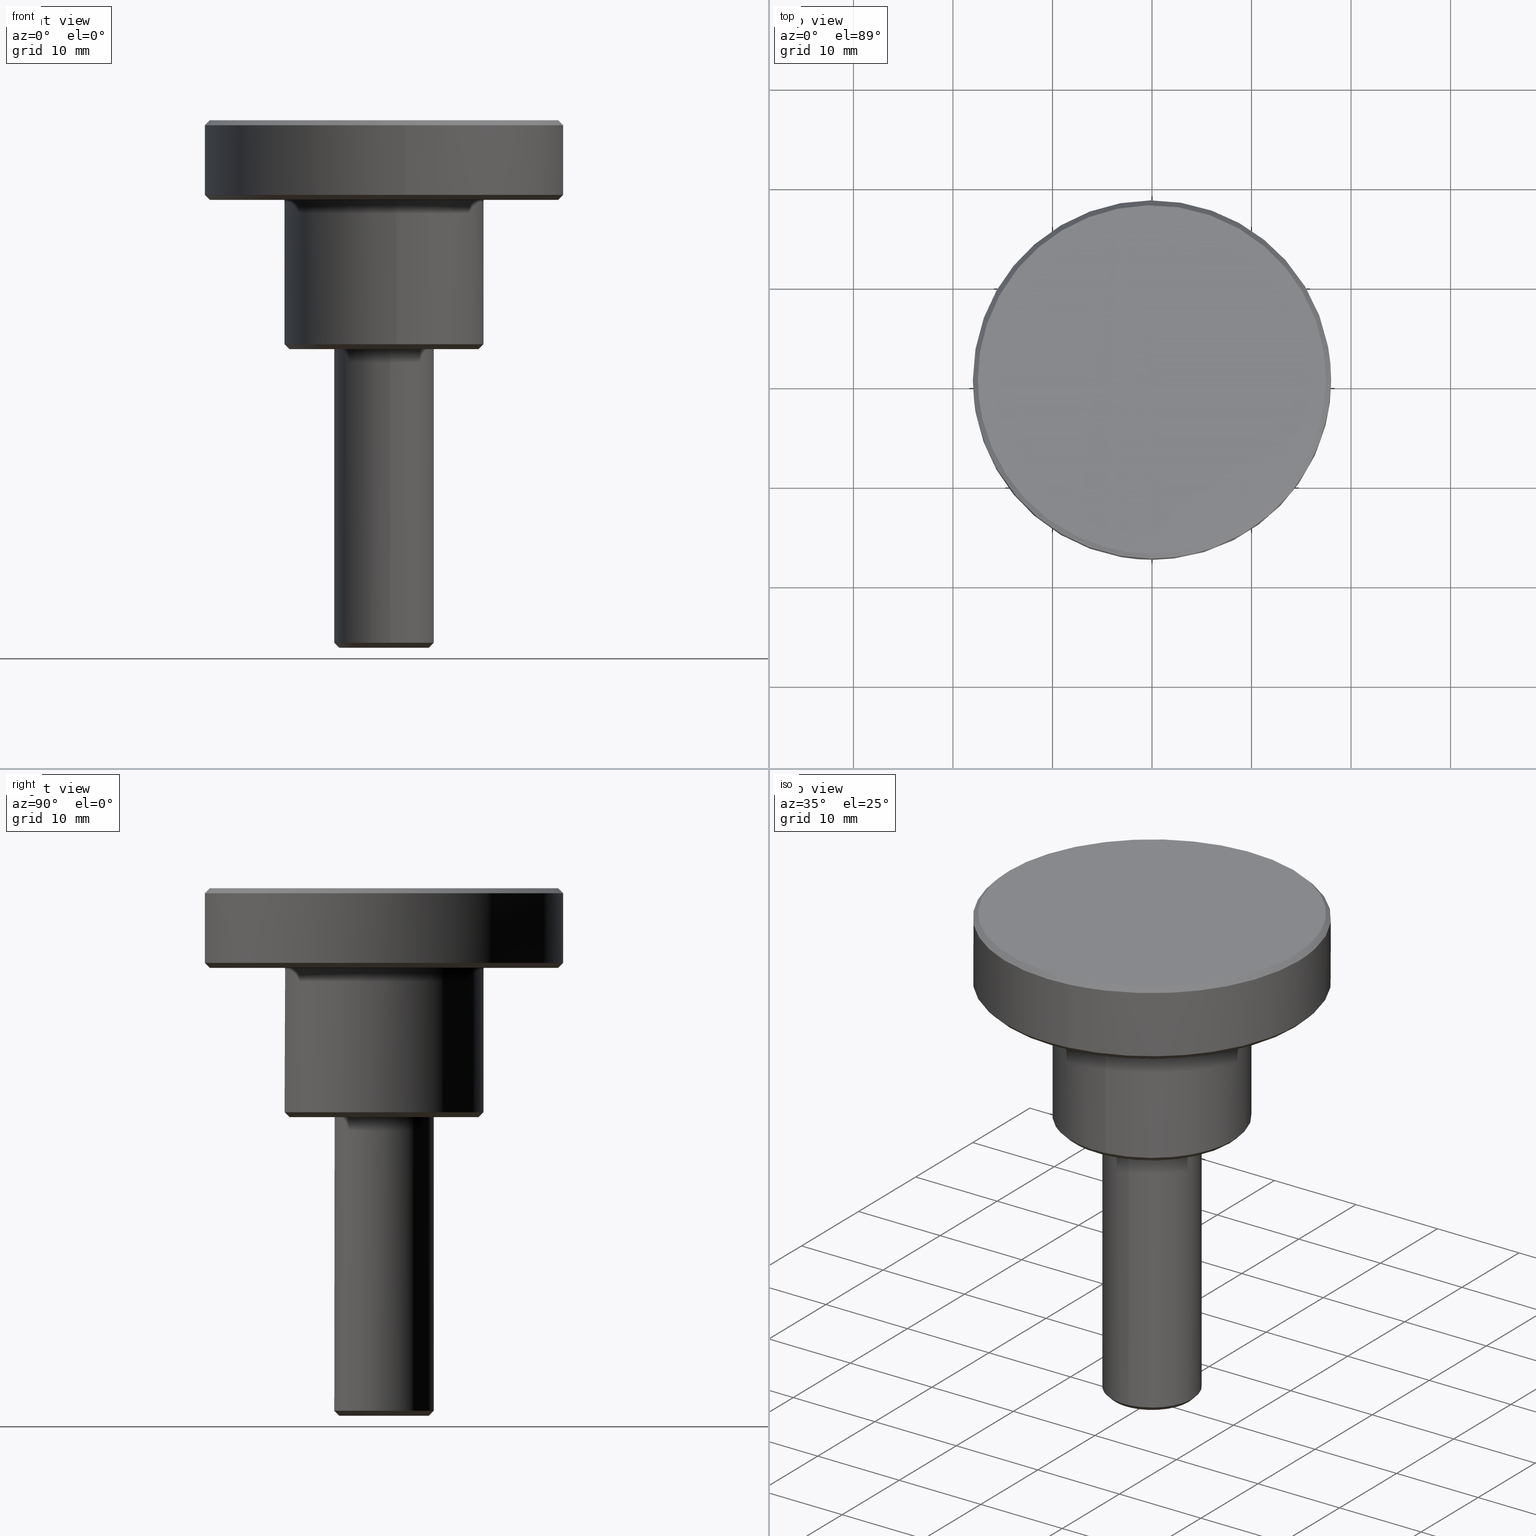
[diagram: canonical four-view strip — front | top / right | iso, engineering-drawing reading convention]
A machine part, canonical four-view strip (front | top / right | iso — engineering-drawing reading convention). The complete STEP part file that produces these views, byte-faithful:
ISO-10303-21;
HEADER;
/****************************************************************
 * Generated by software with PDE/Lib inside                    *
 * PDElib Version 4.4.1-0003, patched  Thursday August 19 11:58 *
 * International Technegroup Inc. (www.iti-oh.com)              *
 ****************************************************************/
FILE_DESCRIPTION((''),'2;1');
FILE_NAME('','2005-07-15T10:52:57',(''),(''),'','CADfix','');
FILE_SCHEMA(('AUTOMOTIVE_DESIGN'));
ENDSEC;
DATA;
#5=APPLICATION_CONTEXT('automotive design');
#6=APPLICATION_PROTOCOL_DEFINITION('Draft International Standard','automotive_design',1998,#5);
#7=PRODUCT_CONTEXT('None',#5,'mechanical');
#8=PRODUCT('knob','','None',(#7));
#9=PRODUCT_RELATED_PRODUCT_CATEGORY('part','description',(#8));
#10=PRODUCT_DEFINITION_FORMATION('None','None',#8);
#11=PRODUCT_DEFINITION_CONTEXT('part definition',#5,'design');
#12=PRODUCT_DEFINITION('None','None',#10,#11);
#18=(NAMED_UNIT(*)PLANE_ANGLE_UNIT()SI_UNIT($,.RADIAN.));
#19=DIMENSIONAL_EXPONENTS(0.0,0.0,0.0,0.0,0.0,0.0,0.0);
#20=PLANE_ANGLE_MEASURE_WITH_UNIT(PLANE_ANGLE_MEASURE(0.017453292500000),#18);
#24=(CONVERSION_BASED_UNIT('DEGREE',#20)NAMED_UNIT(#19)PLANE_ANGLE_UNIT());
#28=(NAMED_UNIT(*)SI_UNIT($,.STERADIAN.)SOLID_ANGLE_UNIT());
#32=(LENGTH_UNIT()NAMED_UNIT(*)SI_UNIT(.MILLI.,.METRE.));
#34=UNCERTAINTY_MEASURE_WITH_UNIT(LENGTH_MEASURE(0.001000000000000),#32,'DISTANCE_ACCURACY_VALUE','');
#36=(GEOMETRIC_REPRESENTATION_CONTEXT(3)GLOBAL_UNCERTAINTY_ASSIGNED_CONTEXT((#34))GLOBAL_UNIT_ASSIGNED_CONTEXT((#24,#28,#32))REPRESENTATION_CONTEXT('None','None'));
#37=AXIS2_PLACEMENT_3D('',#38,#39,#40);
#38=CARTESIAN_POINT('',(0.0,0.0,0.0));
#39=DIRECTION('',(0.0,0.0,1.0));
#40=DIRECTION('',(1.0,0.0,0.0));
#41=ADVANCED_BREP_SHAPE_REPRESENTATION('',(#37,#1263),#36);
#42=PRODUCT_DEFINITION_SHAPE('','',#12);
#43=SHAPE_DEFINITION_REPRESENTATION(#42,#41);
#44=CARTESIAN_POINT('',(-1.813916751045586,-4.104553845459481,-30.012500000000003));
#45=CARTESIAN_POINT('',(-0.928656247279884,-4.495775137049067,-30.012500000000014));
#46=CARTESIAN_POINT('',(0.039160328048953,-4.487329129750467,-30.012499999999999));
#47=CARTESIAN_POINT('',(4.526489457799420,-4.448168801701514,-30.012500000000003));
#48=CARTESIAN_POINT('',(4.487329129750467,0.039160328048953,-30.012499999999999));
#49=CARTESIAN_POINT('',(4.448168801701514,4.526489457799420,-30.012500000000003));
#50=CARTESIAN_POINT('',(-0.039160328048953,4.487329129750467,-30.012499999999999));
#51=CARTESIAN_POINT('',(-2.026256170161696,-4.585038177925827,-29.487187500000001));
#52=CARTESIAN_POINT('',(-1.037365937508111,-5.022056335195220,-29.487187499999994));
#53=CARTESIAN_POINT('',(0.043744486227942,-5.012621627460064,-29.487187500000001));
#54=CARTESIAN_POINT('',(5.056366113688005,-4.968877141232122,-29.487187500000001));
#55=CARTESIAN_POINT('',(5.012621627460064,0.043744486227942,-29.487187500000001));
#56=CARTESIAN_POINT('',(4.968877141232122,5.056366113688005,-29.487187500000001));
#57=CARTESIAN_POINT('',(-0.043744486227942,5.012621627460064,-29.487187500000001));
#65=(BOUNDED_SURFACE()B_SPLINE_SURFACE(2,1,((#44,#51),(#45,#52),(#46,#53),(#47,#54),(#48,#55),(#49,#56),(#50,#57)),.UNSPECIFIED.,.F.,.F.,.U.)B_SPLINE_SURFACE_WITH_KNOTS((3,2,2,3),(2,2),(0.0,2.325539913909363,10.631039606442799,18.936539298976239),(0.0,1.0),.UNSPECIFIED.)GEOMETRIC_REPRESENTATION_ITEM()RATIONAL_B_SPLINE_SURFACE(((0.881905454174416,0.881905454174416),(0.917989898732233,0.917989898732233),(1.0,1.0),(0.707106781186548,0.707106781186548),(1.0,1.0),(0.707106781186548,0.707106781186548),(1.0,1.0)))REPRESENTATION_ITEM('')SURFACE());
#66=CARTESIAN_POINT('',(-2.021077159977029,-4.573319047852693,-29.499999999996660));
#67=VERTEX_POINT('',#66);
#68=CARTESIAN_POINT('',(0.620640010450138,-4.961331069121314,-29.500000000000000));
#69=VERTEX_POINT('',#68);
#70=CARTESIAN_POINT('',(-2.021077159977029,-4.573319047852693,-29.499999999996664));
#71=CARTESIAN_POINT('',(-1.055578086300889,-5.0,-29.499999999999996));
#72=CARTESIAN_POINT('',(0.0,-5.0,-29.500000000000000));
#73=CARTESIAN_POINT('',(0.311524637719061,-5.0,-29.499999999999996));
#74=CARTESIAN_POINT('',(0.620640010450138,-4.961331069121314,-29.499999999999996));
#82=(BOUNDED_CURVE()B_SPLINE_CURVE(2,(#70,#71,#72,#73,#74),.UNSPECIFIED.,.F.,.U.)B_SPLINE_CURVE_WITH_KNOTS((3,2,3),(0.181361578457453,0.250000000000000,0.271473928974168),.UNSPECIFIED.)CURVE()GEOMETRIC_REPRESENTATION_ITEM()RATIONAL_B_SPLINE_CURVE((0.883326595749265,0.919585087120516,1.0,0.974841727288738,0.954005430267991))REPRESENTATION_ITEM(''));
#83=EDGE_CURVE('',#67,#69,#82,.T.);
#84=ORIENTED_EDGE('',*,*,#83,.F.);
#85=CARTESIAN_POINT('',(-1.818969443978999,-4.115987143067622,-29.999999999996970));
#86=VERTEX_POINT('',#85);
#87=CARTESIAN_POINT('',(-1.818969443978999,-4.115987143067622,-29.999999999996970));
#88=CARTESIAN_POINT('',(-2.021077159977029,-4.573319047852693,-29.499999999996660));
#89=QUASI_UNIFORM_CURVE('',1,(#87,#88),.UNSPECIFIED.,.F.,.U.);
#90=EDGE_CURVE('',#86,#67,#89,.T.);
#91=ORIENTED_EDGE('',*,*,#90,.F.);
#92=CARTESIAN_POINT('',(4.500000000000000,0.0,-30.0));
#93=VERTEX_POINT('',#92);
#94=CARTESIAN_POINT('',(4.500000000000000,0.0,-30.0));
#95=CARTESIAN_POINT('',(4.500000000000000,-4.500000000000000,-29.999999999999993));
#96=CARTESIAN_POINT('',(0.0,-4.500000000000000,-30.0));
#97=CARTESIAN_POINT('',(-0.950020277670413,-4.500000000000002,-29.999999999999996));
#98=CARTESIAN_POINT('',(-1.818969443979000,-4.115987143067623,-29.999999999996973));
#106=(BOUNDED_CURVE()B_SPLINE_CURVE(2,(#94,#95,#96,#97,#98),.UNSPECIFIED.,.F.,.U.)B_SPLINE_CURVE_WITH_KNOTS((3,2,3),(0.500000000000000,0.750000000000000,0.818638421542521),.UNSPECIFIED.)CURVE()GEOMETRIC_REPRESENTATION_ITEM()RATIONAL_B_SPLINE_CURVE((1.0,0.707106781186547,1.0,0.919585087120546,0.883326595749292))REPRESENTATION_ITEM(''));
#107=EDGE_CURVE('',#93,#86,#106,.T.);
#108=ORIENTED_EDGE('',*,*,#107,.F.);
#109=CARTESIAN_POINT('',(-0.039269409880657,4.499828653806391,-29.999999999981181));
#110=VERTEX_POINT('',#109);
#111=CARTESIAN_POINT('',(-0.039269409880657,4.499828653806391,-29.999999999981178));
#112=CARTESIAN_POINT('',(-0.019635078830975,4.500000000000000,-30.0));
#113=CARTESIAN_POINT('',(0.0,4.500000000000000,-30.0));
#114=CARTESIAN_POINT('',(4.500000000000000,4.500000000000000,-29.999999999999993));
#115=CARTESIAN_POINT('',(4.500000000000000,0.0,-30.0));
#123=(BOUNDED_CURVE()B_SPLINE_CURVE(2,(#111,#112,#113,#114,#115),.UNSPECIFIED.,.F.,.U.)B_SPLINE_CURVE_WITH_KNOTS((3,2,3),(0.248460105654224,0.250000000000000,0.500000000000000),.UNSPECIFIED.)CURVE()GEOMETRIC_REPRESENTATION_ITEM()RATIONAL_B_SPLINE_CURVE((0.996414028075437,0.998195901553732,1.0,0.707106781186547,1.0))REPRESENTATION_ITEM(''));
#124=EDGE_CURVE('',#110,#93,#123,.T.);
#125=ORIENTED_EDGE('',*,*,#124,.F.);
#126=CARTESIAN_POINT('',(-0.043632677512376,4.999809615320641,-29.500000000000011));
#127=VERTEX_POINT('',#126);
#128=CARTESIAN_POINT('',(-0.039269409880657,4.499828653806391,-29.999999999981181));
#129=CARTESIAN_POINT('',(-0.043632677512376,4.999809615320641,-29.500000000000011));
#130=QUASI_UNIFORM_CURVE('',1,(#128,#129),.UNSPECIFIED.,.F.,.U.);
#131=EDGE_CURVE('',#110,#127,#130,.T.);
#132=ORIENTED_EDGE('',*,*,#131,.T.);
#133=CARTESIAN_POINT('',(5.0,0.0,-29.500000000000000));
#134=VERTEX_POINT('',#133);
#135=CARTESIAN_POINT('',(5.0,0.0,-29.500000000000000));
#136=CARTESIAN_POINT('',(5.000000000000001,5.000000000000001,-29.499999999999996));
#137=CARTESIAN_POINT('',(0.0,5.0,-29.500000000000000));
#138=CARTESIAN_POINT('',(-0.021816754144535,5.000000000000001,-29.499999999999996));
#139=CARTESIAN_POINT('',(-0.043632677512376,4.999809615320641,-29.500000000000014));
#147=(BOUNDED_CURVE()B_SPLINE_CURVE(2,(#135,#136,#137,#138,#139),.UNSPECIFIED.,.F.,.U.)B_SPLINE_CURVE_WITH_KNOTS((3,2,3),(0.500000000000000,0.750000000000000,0.751539894337878),.UNSPECIFIED.)CURVE()GEOMETRIC_REPRESENTATION_ITEM()RATIONAL_B_SPLINE_CURVE((1.0,0.707106781186548,1.0,0.998195901562986,0.996414028093716))REPRESENTATION_ITEM(''));
#148=EDGE_CURVE('',#134,#127,#147,.T.);
#149=ORIENTED_EDGE('',*,*,#148,.F.);
#150=CARTESIAN_POINT('',(0.620640010450138,-4.961331069121314,-29.499999999999996));
#151=CARTESIAN_POINT('',(5.000000000000001,-4.413493000659715,-29.500000000000000));
#152=CARTESIAN_POINT('',(5.0,0.0,-29.500000000000000));
#160=(BOUNDED_CURVE()B_SPLINE_CURVE(2,(#150,#151,#152),.UNSPECIFIED.,.F.,.U.)B_SPLINE_CURVE_WITH_KNOTS((3,3),(0.271473928974168,0.500000000000000),.UNSPECIFIED.)CURVE()GEOMETRIC_REPRESENTATION_ITEM()RATIONAL_B_SPLINE_CURVE((0.954005430267991,0.732265053897809,1.0))REPRESENTATION_ITEM(''));
#161=EDGE_CURVE('',#69,#134,#160,.T.);
#162=ORIENTED_EDGE('',*,*,#161,.F.);
#163=EDGE_LOOP('',(#84,#91,#108,#125,#132,#149,#162));
#164=FACE_OUTER_BOUND('',#163,.T.);
#165=ADVANCED_FACE('',(#164),#65,.T.);
#166=CARTESIAN_POINT('',(-0.039160328048953,4.487329129750467,-30.012499999999999));
#167=CARTESIAN_POINT('',(-4.526489457799420,4.448168801701514,-30.012500000000003));
#168=CARTESIAN_POINT('',(-4.487329129750467,-0.039160328048953,-30.012499999999999));
#169=CARTESIAN_POINT('',(-4.462063944610639,-2.934263788488800,-30.012499999999999));
#170=CARTESIAN_POINT('',(-1.813916751045586,-4.104553845459481,-30.012500000000003));
#171=CARTESIAN_POINT('',(-0.043744486227942,5.012621627460064,-29.487187500000001));
#172=CARTESIAN_POINT('',(-5.056366113688005,4.968877141232122,-29.487187500000001));
#173=CARTESIAN_POINT('',(-5.012621627460064,-0.043744486227942,-29.487187500000001));
#174=CARTESIAN_POINT('',(-4.984398867374551,-3.277752467350163,-29.487187499999990));
#175=CARTESIAN_POINT('',(-2.026256170161696,-4.585038177925827,-29.487187500000001));
#183=(BOUNDED_SURFACE()B_SPLINE_SURFACE(2,1,((#166,#171),(#167,#172),(#168,#173),(#169,#174),(#170,#175)),.UNSPECIFIED.,.F.,.F.,.U.)B_SPLINE_SURFACE_WITH_KNOTS((3,2,3),(2,2),(0.0,8.305499692533436,14.285459471157511),(0.0,1.0),.UNSPECIFIED.)GEOMETRIC_REPRESENTATION_ITEM()RATIONAL_B_SPLINE_SURFACE(((1.0,1.0),(0.707106781186548,0.707106781186548),(1.0,1.0),(0.789116882454314,0.789116882454314),(0.881905454174416,0.881905454174416)))REPRESENTATION_ITEM('')SURFACE());
#184=CARTESIAN_POINT('',(-5.0,0.0,-29.500000000000000));
#185=VERTEX_POINT('',#184);
#186=CARTESIAN_POINT('',(-5.0,0.0,-29.500000000000000));
#187=CARTESIAN_POINT('',(-5.000000000000001,-3.256850012901579,-29.500000000000000));
#188=CARTESIAN_POINT('',(-2.021077159977029,-4.573319047852693,-29.499999999996664));
#196=(BOUNDED_CURVE()B_SPLINE_CURVE(2,(#186,#187,#188),.UNSPECIFIED.,.F.,.U.)B_SPLINE_CURVE_WITH_KNOTS((3,3),(0.0,0.181361578457453),.UNSPECIFIED.)CURVE()GEOMETRIC_REPRESENTATION_ITEM()RATIONAL_B_SPLINE_CURVE((1.0,0.787521694066032,0.883326595749265))REPRESENTATION_ITEM(''));
#197=EDGE_CURVE('',#185,#67,#196,.T.);
#198=ORIENTED_EDGE('',*,*,#197,.F.);
#199=CARTESIAN_POINT('',(-0.043632677512376,4.999809615320642,-29.500000000000011));
#200=CARTESIAN_POINT('',(-5.000000000000001,4.956556052893570,-29.499999999999996));
#201=CARTESIAN_POINT('',(-5.0,0.0,-29.500000000000000));
#209=(BOUNDED_CURVE()B_SPLINE_CURVE(2,(#199,#200,#201),.UNSPECIFIED.,.F.,.U.)B_SPLINE_CURVE_WITH_KNOTS((3,3),(0.751539894337877,1.0),.UNSPECIFIED.)CURVE()GEOMETRIC_REPRESENTATION_ITEM()RATIONAL_B_SPLINE_CURVE((0.996414028093718,0.708910879623561,1.0))REPRESENTATION_ITEM(''));
#210=EDGE_CURVE('',#127,#185,#209,.T.);
#211=ORIENTED_EDGE('',*,*,#210,.F.);
#212=ORIENTED_EDGE('',*,*,#131,.F.);
#213=CARTESIAN_POINT('',(-4.500000000000000,0.0,-30.0));
#214=VERTEX_POINT('',#213);
#215=CARTESIAN_POINT('',(-4.500000000000000,0.0,-30.0));
#216=CARTESIAN_POINT('',(-4.500000000000002,4.460900447404158,-30.000000000000004));
#217=CARTESIAN_POINT('',(-0.039269409880657,4.499828653806391,-29.999999999981181));
#225=(BOUNDED_CURVE()B_SPLINE_CURVE(2,(#215,#216,#217),.UNSPECIFIED.,.F.,.U.)B_SPLINE_CURVE_WITH_KNOTS((3,3),(0.0,0.248460105654224),.UNSPECIFIED.)CURVE()GEOMETRIC_REPRESENTATION_ITEM()RATIONAL_B_SPLINE_CURVE((1.0,0.708910879632815,0.996414028075437))REPRESENTATION_ITEM(''));
#226=EDGE_CURVE('',#214,#110,#225,.T.);
#227=ORIENTED_EDGE('',*,*,#226,.F.);
#228=CARTESIAN_POINT('',(-1.818969443978999,-4.115987143067621,-29.999999999996977));
#229=CARTESIAN_POINT('',(-4.500000000000001,-2.931165011611958,-30.0));
#230=CARTESIAN_POINT('',(-4.500000000000000,0.0,-30.0));
#238=(BOUNDED_CURVE()B_SPLINE_CURVE(2,(#228,#229,#230),.UNSPECIFIED.,.F.,.U.)B_SPLINE_CURVE_WITH_KNOTS((3,3),(0.818638421542520,1.0),.UNSPECIFIED.)CURVE()GEOMETRIC_REPRESENTATION_ITEM()RATIONAL_B_SPLINE_CURVE((0.883326595749293,0.787521694066001,1.0))REPRESENTATION_ITEM(''));
#239=EDGE_CURVE('',#86,#214,#238,.T.);
#240=ORIENTED_EDGE('',*,*,#239,.F.);
#241=ORIENTED_EDGE('',*,*,#90,.T.);
#242=EDGE_LOOP('',(#198,#211,#212,#227,#240,#241));
#243=FACE_OUTER_BOUND('',#242,.T.);
#244=ADVANCED_FACE('',(#243),#183,.T.);
#245=CARTESIAN_POINT('',(-17.036639953710658,-3.945320688819989,23.012499999999999));
#246=CARTESIAN_POINT('',(-17.504948331500820,-1.923076656205386,23.012500000000003));
#247=CARTESIAN_POINT('',(-17.486834129584739,0.152605289527814,23.012499999999999));
#248=CARTESIAN_POINT('',(-17.334228840056934,17.639439419112552,23.012500000000006));
#249=CARTESIAN_POINT('',(0.152605289527814,17.486834129584739,23.012499999999999));
#250=CARTESIAN_POINT('',(17.639439419112552,17.334228840056934,23.012500000000006));
#251=CARTESIAN_POINT('',(17.486834129584739,-0.152605289527814,23.012499999999999));
#252=CARTESIAN_POINT('',(17.334228840056934,-17.639439419112552,23.012500000000006));
#253=CARTESIAN_POINT('',(-0.152605289527814,-17.486834129584739,23.012499999999999));
#254=CARTESIAN_POINT('',(-17.548408927302248,-4.063835415015588,22.487187499999994));
#255=CARTESIAN_POINT('',(-18.030784967405925,-1.980844559334066,22.487187499999990));
#256=CARTESIAN_POINT('',(-18.012126627294339,0.157189447706803,22.487187500000001));
#257=CARTESIAN_POINT('',(-17.854937179587541,18.169316075001138,22.487187500000005));
#258=CARTESIAN_POINT('',(0.157189447706803,18.012126627294339,22.487187500000001));
#259=CARTESIAN_POINT('',(18.169316075001138,17.854937179587541,22.487187500000005));
#260=CARTESIAN_POINT('',(18.012126627294339,-0.157189447706803,22.487187500000001));
#261=CARTESIAN_POINT('',(17.854937179587541,-18.169316075001138,22.487187500000005));
#262=CARTESIAN_POINT('',(-0.157189447706803,-18.012126627294339,22.487187500000001));
#270=(BOUNDED_SURFACE()B_SPLINE_SURFACE(2,1,((#245,#254),(#246,#255),(#247,#256),(#248,#257),(#249,#258),(#250,#259),(#251,#260),(#252,#261),(#253,#262)),.UNSPECIFIED.,.F.,.F.,.U.)B_SPLINE_SURFACE_WITH_KNOTS((3,2,2,2,3),(2,2),(0.0,4.775136789749517,34.619741725683980,64.464346661618450,94.308951597552920),(0.0,1.0),.UNSPECIFIED.)GEOMETRIC_REPRESENTATION_ITEM()RATIONAL_B_SPLINE_SURFACE(((0.921270302782944,0.921270302782944),(0.953137084989848,0.953137084989848),(1.0,1.0),(0.707106781186548,0.707106781186548),(1.0,1.0),(0.707106781186548,0.707106781186548),(1.0,1.0),(0.707106781186548,0.707106781186548),(1.0,1.0)))REPRESENTATION_ITEM('')SURFACE());
#271=CARTESIAN_POINT('',(-17.535926757209651,-4.060944811981644,22.499999999994941));
#272=VERTEX_POINT('',#271);
#273=CARTESIAN_POINT('',(-18.0,0.0,22.500000000000000));
#274=VERTEX_POINT('',#273);
#275=CARTESIAN_POINT('',(-17.535926757209651,-4.060944811981645,22.499999999994944));
#276=CARTESIAN_POINT('',(-18.0,-2.056988892279863,22.500000000000007));
#277=CARTESIAN_POINT('',(-18.0,0.0,22.500000000000000));
#285=(BOUNDED_CURVE()B_SPLINE_CURVE(2,(#275,#276,#277),.UNSPECIFIED.,.F.,.U.)B_SPLINE_CURVE_WITH_KNOTS((3,3),(0.961422971783811,1.0),.UNSPECIFIED.)CURVE()GEOMETRIC_REPRESENTATION_ITEM()RATIONAL_B_SPLINE_CURVE((0.923556557441492,0.954804200134012,1.0))REPRESENTATION_ITEM(''));
#286=EDGE_CURVE('',#272,#274,#285,.T.);
#287=ORIENTED_EDGE('',*,*,#286,.F.);
#288=CARTESIAN_POINT('',(-17.048817680622559,-3.948140789408552,22.999999999997168));
#289=VERTEX_POINT('',#288);
#290=CARTESIAN_POINT('',(-17.048817680622559,-3.948140789408552,22.999999999997168));
#291=CARTESIAN_POINT('',(-17.535926757209651,-4.060944811981644,22.499999999994941));
#292=QUASI_UNIFORM_CURVE('',1,(#290,#291),.UNSPECIFIED.,.F.,.U.);
#293=EDGE_CURVE('',#289,#272,#292,.T.);
#294=ORIENTED_EDGE('',*,*,#293,.F.);
#295=CARTESIAN_POINT('',(-17.500000000000000,0.0,23.0));
#296=VERTEX_POINT('',#295);
#297=CARTESIAN_POINT('',(-17.500000000000000,0.0,23.0));
#298=CARTESIAN_POINT('',(-17.500000000000000,-1.999850311920436,23.0));
#299=CARTESIAN_POINT('',(-17.048817680622570,-3.948140789408552,22.999999999997165));
#307=(BOUNDED_CURVE()B_SPLINE_CURVE(2,(#297,#298,#299),.UNSPECIFIED.,.F.,.U.)B_SPLINE_CURVE_WITH_KNOTS((3,3),(0.500000000000000,0.538577028215852),.UNSPECIFIED.)CURVE()GEOMETRIC_REPRESENTATION_ITEM()RATIONAL_B_SPLINE_CURVE((1.0,0.954804200134407,0.923556557442039))REPRESENTATION_ITEM(''));
#308=EDGE_CURVE('',#296,#289,#307,.T.);
#309=ORIENTED_EDGE('',*,*,#308,.F.);
#310=CARTESIAN_POINT('',(17.500000000000000,0.0,23.0));
#311=VERTEX_POINT('',#310);
#312=CARTESIAN_POINT('',(17.500000000000000,0.0,23.0));
#313=CARTESIAN_POINT('',(17.499999999999996,17.499999999999996,22.999999999999993));
#314=CARTESIAN_POINT('',(0.0,17.500000000000000,23.0));
#315=CARTESIAN_POINT('',(-17.499999999999996,17.499999999999996,22.999999999999993));
#316=CARTESIAN_POINT('',(-17.500000000000000,0.0,23.0));
#324=(BOUNDED_CURVE()B_SPLINE_CURVE(2,(#312,#313,#314,#315,#316),.UNSPECIFIED.,.F.,.U.)B_SPLINE_CURVE_WITH_KNOTS((3,2,3),(0.0,0.250000000000000,0.500000000000000),.UNSPECIFIED.)CURVE()GEOMETRIC_REPRESENTATION_ITEM()RATIONAL_B_SPLINE_CURVE((1.0,0.707106781186548,1.0,0.707106781186548,1.0))REPRESENTATION_ITEM(''));
#325=EDGE_CURVE('',#311,#296,#324,.T.);
#326=ORIENTED_EDGE('',*,*,#325,.F.);
#327=CARTESIAN_POINT('',(-0.152714371277438,-17.499333653630121,22.999999999992411));
#328=VERTEX_POINT('',#327);
#329=CARTESIAN_POINT('',(-0.152714371277438,-17.499333653630117,22.999999999992411));
#330=CARTESIAN_POINT('',(-0.076358639418109,-17.500000000000000,22.999999999999996));
#331=CARTESIAN_POINT('',(0.0,-17.500000000000000,23.0));
#332=CARTESIAN_POINT('',(17.499999999999996,-17.499999999999996,22.999999999999993));
#333=CARTESIAN_POINT('',(17.500000000000000,0.0,23.0));
#341=(BOUNDED_CURVE()B_SPLINE_CURVE(2,(#329,#330,#331,#332,#333),.UNSPECIFIED.,.F.,.U.)B_SPLINE_CURVE_WITH_KNOTS((3,2,3),(0.748460105663889,0.750000000000000,1.0),.UNSPECIFIED.)CURVE()GEOMETRIC_REPRESENTATION_ITEM()RATIONAL_B_SPLINE_CURVE((0.996414028097805,0.998195901565055,1.0,0.707106781186548,1.0))REPRESENTATION_ITEM(''));
#342=EDGE_CURVE('',#328,#311,#341,.T.);
#343=ORIENTED_EDGE('',*,*,#342,.F.);
#344=CARTESIAN_POINT('',(-0.157077639032333,-17.999314615162909,22.499999999991630));
#345=VERTEX_POINT('',#344);
#346=CARTESIAN_POINT('',(-0.152714371277438,-17.499333653630121,22.999999999992411));
#347=CARTESIAN_POINT('',(-0.157077639032333,-17.999314615162909,22.499999999991630));
#348=QUASI_UNIFORM_CURVE('',1,(#346,#347),.UNSPECIFIED.,.F.,.U.);
#349=EDGE_CURVE('',#328,#345,#348,.T.);
#350=ORIENTED_EDGE('',*,*,#349,.T.);
#351=CARTESIAN_POINT('',(2.234292159408510,-17.860793334739139,22.499999999999940));
#352=VERTEX_POINT('',#351);
#353=CARTESIAN_POINT('',(2.234292159408510,-17.860793334739142,22.499999999999936));
#354=CARTESIAN_POINT('',(1.121482687065887,-18.0,22.500000000000000));
#355=CARTESIAN_POINT('',(0.0,-18.0,22.500000000000000));
#356=CARTESIAN_POINT('',(-0.078540314834133,-17.999999999999996,22.499999999999996));
#357=CARTESIAN_POINT('',(-0.157077639032333,-17.999314615162909,22.499999999991626));
#365=(BOUNDED_CURVE()B_SPLINE_CURVE(2,(#353,#354,#355,#356,#357),.UNSPECIFIED.,.F.,.U.)B_SPLINE_CURVE_WITH_KNOTS((3,2,3),(0.728526183184527,0.750000000000000,0.751539894336191),.UNSPECIFIED.)CURVE()GEOMETRIC_REPRESENTATION_ITEM()RATIONAL_B_SPLINE_CURVE((0.954005647924773,0.974841858690822,1.0,0.998195901564962,0.996414028097620))REPRESENTATION_ITEM(''));
#366=EDGE_CURVE('',#352,#345,#365,.T.);
#367=ORIENTED_EDGE('',*,*,#366,.F.);
#368=CARTESIAN_POINT('',(18.0,0.0,22.500000000000000));
#369=VERTEX_POINT('',#368);
#370=CARTESIAN_POINT('',(18.0,0.0,22.500000000000000));
#371=CARTESIAN_POINT('',(17.999999999999993,-15.888585451499475,22.500000000000004));
#372=CARTESIAN_POINT('',(2.234292159408510,-17.860793334739142,22.499999999999936));
#380=(BOUNDED_CURVE()B_SPLINE_CURVE(2,(#370,#371,#372),.UNSPECIFIED.,.F.,.U.)B_SPLINE_CURVE_WITH_KNOTS((3,3),(0.500000000000000,0.728526183184527),.UNSPECIFIED.)CURVE()GEOMETRIC_REPRESENTATION_ITEM()RATIONAL_B_SPLINE_CURVE((1.0,0.732264922495725,0.954005647924773))REPRESENTATION_ITEM(''));
#381=EDGE_CURVE('',#369,#352,#380,.T.);
#382=ORIENTED_EDGE('',*,*,#381,.F.);
#383=CARTESIAN_POINT('',(-0.157060916530369,17.999314761074071,22.499999999999972));
#384=VERTEX_POINT('',#383);
#385=CARTESIAN_POINT('',(-0.157060916530369,17.999314761074071,22.499999999999968));
#386=CARTESIAN_POINT('',(-0.078531953074956,18.0,22.500000000000000));
#387=CARTESIAN_POINT('',(0.0,18.0,22.500000000000000));
#388=CARTESIAN_POINT('',(18.000000000000007,18.000000000000007,22.500000000000004));
#389=CARTESIAN_POINT('',(18.0,0.0,22.500000000000000));
#397=(BOUNDED_CURVE()B_SPLINE_CURVE(2,(#385,#386,#387,#388,#389),.UNSPECIFIED.,.F.,.U.)B_SPLINE_CURVE_WITH_KNOTS((3,2,3),(0.248460269312225,0.250000000000000,0.500000000000000),.UNSPECIFIED.)CURVE()GEOMETRIC_REPRESENTATION_ITEM()RATIONAL_B_SPLINE_CURVE((0.996414406826155,0.998196093291007,1.0,0.707106781186547,1.0))REPRESENTATION_ITEM(''));
#398=EDGE_CURVE('',#384,#369,#397,.T.);
#399=ORIENTED_EDGE('',*,*,#398,.F.);
#400=CARTESIAN_POINT('',(-18.0,0.0,22.500000000000000));
#401=CARTESIAN_POINT('',(-17.999999999999993,17.843618369122190,22.500000000000004));
#402=CARTESIAN_POINT('',(-0.157060916530369,17.999314761074071,22.499999999999968));
#410=(BOUNDED_CURVE()B_SPLINE_CURVE(2,(#400,#401,#402),.UNSPECIFIED.,.F.,.U.)B_SPLINE_CURVE_WITH_KNOTS((3,3),(0.0,0.248460269312225),.UNSPECIFIED.)CURVE()GEOMETRIC_REPRESENTATION_ITEM()RATIONAL_B_SPLINE_CURVE((1.0,0.708910687895541,0.996414406826155))REPRESENTATION_ITEM(''));
#411=EDGE_CURVE('',#274,#384,#410,.T.);
#412=ORIENTED_EDGE('',*,*,#411,.F.);
#413=EDGE_LOOP('',(#287,#294,#309,#326,#343,#350,#367,#382,#399,#412));
#414=FACE_OUTER_BOUND('',#413,.T.);
#415=ADVANCED_FACE('',(#414),#270,.T.);
#416=CARTESIAN_POINT('',(-0.152605289527814,-17.486834129584739,23.012499999999999));
#417=CARTESIAN_POINT('',(-13.928556243240688,-17.366613226919718,23.012500000000003));
#418=CARTESIAN_POINT('',(-17.036639953710658,-3.945320688819989,23.012499999999999));
#419=CARTESIAN_POINT('',(-0.157189447706803,-18.012126627294339,22.487187500000001));
#420=CARTESIAN_POINT('',(-14.346960514950569,-17.888294371209376,22.487187500000001));
#421=CARTESIAN_POINT('',(-17.548408927302248,-4.063835415015588,22.487187499999994));
#429=(BOUNDED_SURFACE()B_SPLINE_SURFACE(2,1,((#416,#419),(#417,#420),(#418,#421)),.UNSPECIFIED.,.F.,.F.,.U.)B_SPLINE_SURFACE_WITH_KNOTS((3,3),(2,2),(0.0,24.959837908595269),(0.0,1.0),.UNSPECIFIED.)GEOMETRIC_REPRESENTATION_ITEM()RATIONAL_B_SPLINE_SURFACE(((1.0,1.0),(0.753969696196700,0.753969696196700),(0.921270302782944,0.921270302782944)))REPRESENTATION_ITEM('')SURFACE());
#430=CARTESIAN_POINT('',(-0.157077639032333,-17.999314615162913,22.499999999991630));
#431=CARTESIAN_POINT('',(-14.336755532664897,-17.875570440764317,22.499999999999993));
#432=CARTESIAN_POINT('',(-17.535926757209651,-4.060944811981644,22.499999999994941));
#440=(BOUNDED_CURVE()B_SPLINE_CURVE(2,(#430,#431,#432),.UNSPECIFIED.,.F.,.U.)B_SPLINE_CURVE_WITH_KNOTS((3,3),(0.751539894336191,0.961422971783810),.UNSPECIFIED.)CURVE()GEOMETRIC_REPRESENTATION_ITEM()RATIONAL_B_SPLINE_CURVE((0.996414028097619,0.753549905437709,0.923556557441491))REPRESENTATION_ITEM(''));
#441=EDGE_CURVE('',#345,#272,#440,.T.);
#442=ORIENTED_EDGE('',*,*,#441,.F.);
#443=ORIENTED_EDGE('',*,*,#349,.F.);
#444=CARTESIAN_POINT('',(-17.048817680622559,-3.948140789408552,22.999999999997165));
#445=CARTESIAN_POINT('',(-13.938512323452059,-17.379026817415777,23.000000000000004));
#446=CARTESIAN_POINT('',(-0.152714371277438,-17.499333653630121,22.999999999992411));
#454=(BOUNDED_CURVE()B_SPLINE_CURVE(2,(#444,#445,#446),.UNSPECIFIED.,.F.,.U.)B_SPLINE_CURVE_WITH_KNOTS((3,3),(0.538577028215852,0.748460105663889),.UNSPECIFIED.)CURVE()GEOMETRIC_REPRESENTATION_ITEM()RATIONAL_B_SPLINE_CURVE((0.923556557442037,0.753549905437253,0.996414028097804))REPRESENTATION_ITEM(''));
#455=EDGE_CURVE('',#289,#328,#454,.T.);
#456=ORIENTED_EDGE('',*,*,#455,.F.);
#457=ORIENTED_EDGE('',*,*,#293,.T.);
#458=EDGE_LOOP('',(#442,#443,#456,#457));
#459=FACE_OUTER_BOUND('',#458,.T.);
#460=ADVANCED_FACE('',(#459),#429,.T.);
#461=CARTESIAN_POINT('',(14.319921146030703,-10.037555211378052,14.987499999999999));
#462=CARTESIAN_POINT('',(17.535725391208214,-5.449778383031156,14.987499999999997));
#463=CARTESIAN_POINT('',(17.486834129584690,0.152605289527813,14.987500000000001));
#464=CARTESIAN_POINT('',(17.334228840056877,17.639439419112509,14.987499999999997));
#465=CARTESIAN_POINT('',(-0.152605289527813,17.486834129584690,14.987500000000001));
#466=CARTESIAN_POINT('',(-17.639439419112509,17.334228840056877,14.987499999999997));
#467=CARTESIAN_POINT('',(-17.486834129584690,-0.152605289527813,14.987500000000001));
#468=CARTESIAN_POINT('',(-17.334228840056877,-17.639439419112509,14.987499999999997));
#469=CARTESIAN_POINT('',(0.152605289527813,-17.486834129584690,14.987500000000001));
#470=CARTESIAN_POINT('',(14.750081750864162,-10.339076482113015,15.512812500000001));
#471=CARTESIAN_POINT('',(18.062486548867700,-5.613485985995352,15.512812500000004));
#472=CARTESIAN_POINT('',(18.012126627294400,0.157189447706803,15.512812500000001));
#473=CARTESIAN_POINT('',(17.854937179587598,18.169316075001191,15.512812499999999));
#474=CARTESIAN_POINT('',(-0.157189447706803,18.012126627294400,15.512812500000001));
#475=CARTESIAN_POINT('',(-18.169316075001191,17.854937179587598,15.512812499999999));
#476=CARTESIAN_POINT('',(-18.012126627294400,-0.157189447706803,15.512812500000001));
#477=CARTESIAN_POINT('',(-17.854937179587598,-18.169316075001191,15.512812499999999));
#478=CARTESIAN_POINT('',(0.157189447706803,-18.012126627294400,15.512812500000001));
#486=(BOUNDED_SURFACE()B_SPLINE_SURFACE(2,1,((#461,#470),(#462,#471),(#463,#472),(#464,#473),(#465,#474),(#466,#475),(#467,#476),(#468,#477),(#469,#478)),.UNSPECIFIED.,.F.,.F.,.U.)B_SPLINE_SURFACE_WITH_KNOTS((3,2,2,2,3),(2,2),(0.0,11.937841974373820,41.782446910308373,71.627051846242921,101.471656782177500),(0.0,1.0),.UNSPECIFIED.)GEOMETRIC_REPRESENTATION_ITEM()RATIONAL_B_SPLINE_SURFACE(((0.859411254969543,0.859411254969543),(0.882842712474619,0.882842712474619),(1.0,1.0),(0.707106781186548,0.707106781186548),(1.0,1.0),(0.707106781186548,0.707106781186548),(1.0,1.0),(0.707106781186548,0.707106781186548),(1.0,1.0)))REPRESENTATION_ITEM('')SURFACE());
#487=CARTESIAN_POINT('',(17.500000000000000,0.0,15.0));
#488=VERTEX_POINT('',#487);
#489=CARTESIAN_POINT('',(14.330156972439260,-10.044730018534660,15.000000000000030));
#490=VERTEX_POINT('',#489);
#491=CARTESIAN_POINT('',(17.500000000000000,0.0,15.0));
#492=CARTESIAN_POINT('',(17.500000000000007,-5.522523042427084,15.0));
#493=CARTESIAN_POINT('',(14.330156972439262,-10.044730018534658,15.000000000000034));
#501=(BOUNDED_CURVE()B_SPLINE_CURVE(2,(#491,#492,#493),.UNSPECIFIED.,.F.,.U.)B_SPLINE_CURVE_WITH_KNOTS((3,3),(0.0,0.098673726202883),.UNSPECIFIED.)CURVE()GEOMETRIC_REPRESENTATION_ITEM()RATIONAL_B_SPLINE_CURVE((1.0,0.884396538880481,0.860049271925867))REPRESENTATION_ITEM(''));
#502=EDGE_CURVE('',#488,#490,#501,.T.);
#503=ORIENTED_EDGE('',*,*,#502,.F.);
#504=CARTESIAN_POINT('',(-17.500000000000000,0.0,15.0));
#505=VERTEX_POINT('',#504);
#506=CARTESIAN_POINT('',(-17.500000000000000,0.0,15.0));
#507=CARTESIAN_POINT('',(-17.499999999999996,17.499999999999996,14.999999999999995));
#508=CARTESIAN_POINT('',(0.0,17.500000000000000,15.0));
#509=CARTESIAN_POINT('',(17.499999999999996,17.499999999999996,14.999999999999995));
#510=CARTESIAN_POINT('',(17.500000000000000,0.0,15.0));
#518=(BOUNDED_CURVE()B_SPLINE_CURVE(2,(#506,#507,#508,#509,#510),.UNSPECIFIED.,.F.,.U.)B_SPLINE_CURVE_WITH_KNOTS((3,2,3),(0.500000000000000,0.750000000000000,1.0),.UNSPECIFIED.)CURVE()GEOMETRIC_REPRESENTATION_ITEM()RATIONAL_B_SPLINE_CURVE((1.0,0.707106781186548,1.0,0.707106781186548,1.0))REPRESENTATION_ITEM(''));
#519=EDGE_CURVE('',#505,#488,#518,.T.);
#520=ORIENTED_EDGE('',*,*,#519,.F.);
#521=CARTESIAN_POINT('',(0.152714371277436,-17.499333653630110,15.000000000007599));
#522=VERTEX_POINT('',#521);
#523=CARTESIAN_POINT('',(0.152714371277436,-17.499333653630107,15.000000000007603));
#524=CARTESIAN_POINT('',(0.076358639418107,-17.500000000000000,14.999999999999998));
#525=CARTESIAN_POINT('',(0.0,-17.500000000000000,15.0));
#526=CARTESIAN_POINT('',(-17.499999999999996,-17.499999999999996,14.999999999999995));
#527=CARTESIAN_POINT('',(-17.500000000000000,0.0,15.0));
#535=(BOUNDED_CURVE()B_SPLINE_CURVE(2,(#523,#524,#525,#526,#527),.UNSPECIFIED.,.F.,.U.)B_SPLINE_CURVE_WITH_KNOTS((3,2,3),(0.248460105663889,0.250000000000000,0.500000000000000),.UNSPECIFIED.)CURVE()GEOMETRIC_REPRESENTATION_ITEM()RATIONAL_B_SPLINE_CURVE((0.996414028097805,0.998195901565055,1.0,0.707106781186548,1.0))REPRESENTATION_ITEM(''));
#536=EDGE_CURVE('',#522,#505,#535,.T.);
#537=ORIENTED_EDGE('',*,*,#536,.F.);
#538=CARTESIAN_POINT('',(0.157077645517671,-17.999314617755640,15.500000002657560));
#539=VERTEX_POINT('',#538);
#540=CARTESIAN_POINT('',(0.152714371277436,-17.499333653630110,15.000000000007599));
#541=CARTESIAN_POINT('',(0.157077645517671,-17.999314617755640,15.500000002657560));
#542=QUASI_UNIFORM_CURVE('',1,(#540,#541),.UNSPECIFIED.,.F.,.U.);
#543=EDGE_CURVE('',#522,#539,#542,.T.);
#544=ORIENTED_EDGE('',*,*,#543,.T.);
#545=CARTESIAN_POINT('',(-18.0,0.0,15.500000000000000));
#546=VERTEX_POINT('',#545);
#547=CARTESIAN_POINT('',(-18.0,0.0,15.500000000000000));
#548=CARTESIAN_POINT('',(-18.000000000000007,-18.000000000000007,15.500000000000005));
#549=CARTESIAN_POINT('',(0.0,-18.0,15.500000000000000));
#550=CARTESIAN_POINT('',(0.078540321296755,-18.000000000000004,15.500000000000005));
#551=CARTESIAN_POINT('',(0.157077645517671,-17.999314617755633,15.500000002657558));
#559=(BOUNDED_CURVE()B_SPLINE_CURVE(2,(#547,#548,#549,#550,#551),.UNSPECIFIED.,.F.,.U.)B_SPLINE_CURVE_WITH_KNOTS((3,2,3),(0.0,0.250000000000000,0.251539894462671),.UNSPECIFIED.)CURVE()GEOMETRIC_REPRESENTATION_ITEM()RATIONAL_B_SPLINE_CURVE((1.0,0.707106781186547,1.0,0.998195901416781,0.996414027804909))REPRESENTATION_ITEM(''));
#560=EDGE_CURVE('',#546,#539,#559,.T.);
#561=ORIENTED_EDGE('',*,*,#560,.F.);
#562=CARTESIAN_POINT('',(-0.157060678357187,17.999314763152132,15.500000000000000));
#563=VERTEX_POINT('',#562);
#564=CARTESIAN_POINT('',(-0.157060678357187,17.999314763152132,15.499999999999998));
#565=CARTESIAN_POINT('',(-18.0,17.843618605244128,15.499999999999995));
#566=CARTESIAN_POINT('',(-18.0,0.0,15.500000000000000));
#574=(BOUNDED_CURVE()B_SPLINE_CURVE(2,(#564,#565,#566),.UNSPECIFIED.,.F.,.U.)B_SPLINE_CURVE_WITH_KNOTS((3,3),(0.751539728356992,1.0),.UNSPECIFIED.)CURVE()GEOMETRIC_REPRESENTATION_ITEM()RATIONAL_B_SPLINE_CURVE((0.996414412220248,0.708910685164858,1.0))REPRESENTATION_ITEM(''));
#575=EDGE_CURVE('',#563,#546,#574,.T.);
#576=ORIENTED_EDGE('',*,*,#575,.F.);
#577=CARTESIAN_POINT('',(18.0,0.0,15.500000000000000));
#578=VERTEX_POINT('',#577);
#579=CARTESIAN_POINT('',(18.0,0.0,15.500000000000000));
#580=CARTESIAN_POINT('',(18.000000000000007,18.000000000000007,15.500000000000005));
#581=CARTESIAN_POINT('',(0.0,18.0,15.500000000000000));
#582=CARTESIAN_POINT('',(-0.078531833981565,18.000000000000007,15.499999999999998));
#583=CARTESIAN_POINT('',(-0.157060678357187,17.999314763152132,15.499999999999998));
#591=(BOUNDED_CURVE()B_SPLINE_CURVE(2,(#579,#580,#581,#582,#583),.UNSPECIFIED.,.F.,.U.)B_SPLINE_CURVE_WITH_KNOTS((3,2,3),(0.500000000000000,0.750000000000000,0.751539728356992),.UNSPECIFIED.)CURVE()GEOMETRIC_REPRESENTATION_ITEM()RATIONAL_B_SPLINE_CURVE((1.0,0.707106781186547,1.0,0.998196096021689,0.996414412220248))REPRESENTATION_ITEM(''));
#592=EDGE_CURVE('',#578,#563,#591,.T.);
#593=ORIENTED_EDGE('',*,*,#592,.F.);
#594=CARTESIAN_POINT('',(14.739590028788429,-10.331722304788290,15.500000000000510));
#595=VERTEX_POINT('',#594);
#596=CARTESIAN_POINT('',(14.739590028788431,-10.331722304788290,15.500000000000506));
#597=CARTESIAN_POINT('',(18.000000000000007,-5.680309415080607,15.499999999999993));
#598=CARTESIAN_POINT('',(18.0,0.0,15.500000000000000));
#606=(BOUNDED_CURVE()B_SPLINE_CURVE(2,(#596,#597,#598),.UNSPECIFIED.,.F.,.U.)B_SPLINE_CURVE_WITH_KNOTS((3,3),(0.401326273796921,0.500000000000000),.UNSPECIFIED.)CURVE()GEOMETRIC_REPRESENTATION_ITEM()RATIONAL_B_SPLINE_CURVE((0.860049271925770,0.884396538880252,1.0))REPRESENTATION_ITEM(''));
#607=EDGE_CURVE('',#595,#578,#606,.T.);
#608=ORIENTED_EDGE('',*,*,#607,.F.);
#609=CARTESIAN_POINT('',(14.330156972439260,-10.044730018534660,15.000000000000030));
#610=CARTESIAN_POINT('',(14.739590028788429,-10.331722304788290,15.500000000000510));
#611=QUASI_UNIFORM_CURVE('',1,(#609,#610),.UNSPECIFIED.,.F.,.U.);
#612=EDGE_CURVE('',#490,#595,#611,.T.);
#613=ORIENTED_EDGE('',*,*,#612,.F.);
#614=EDGE_LOOP('',(#503,#520,#537,#544,#561,#576,#593,#608,#613));
#615=FACE_OUTER_BOUND('',#614,.T.);
#616=ADVANCED_FACE('',(#615),#486,.T.);
#617=CARTESIAN_POINT('',(0.152605289527813,-17.486834129584690,14.987500000000001));
#618=CARTESIAN_POINT('',(9.153404521625713,-17.408285344675011,14.987500000000002));
#619=CARTESIAN_POINT('',(14.319921146030703,-10.037555211378052,14.987499999999999));
#620=CARTESIAN_POINT('',(0.157189447706803,-18.012126627294400,15.512812500000001));
#621=CARTESIAN_POINT('',(9.428366512348630,-17.931218290786557,15.512812500000008));
#622=CARTESIAN_POINT('',(14.750081750864162,-10.339076482113015,15.512812500000001));
#630=(BOUNDED_SURFACE()B_SPLINE_SURFACE(2,1,((#617,#620),(#618,#621),(#619,#622)),.UNSPECIFIED.,.F.,.F.,.U.)B_SPLINE_SURFACE_WITH_KNOTS((3,3),(2,2),(0.0,17.784708021925880),(0.0,1.0),.UNSPECIFIED.)GEOMETRIC_REPRESENTATION_ITEM()RATIONAL_B_SPLINE_SURFACE(((1.0,1.0),(0.824264068711928,0.824264068711928),(0.859411254969543,0.859411254969543)))REPRESENTATION_ITEM('')SURFACE());
#631=CARTESIAN_POINT('',(14.330156972439262,-10.044730018534658,15.000000000000034));
#632=CARTESIAN_POINT('',(9.159947341194890,-17.420728722275989,15.000000000000002));
#633=CARTESIAN_POINT('',(0.152714371277436,-17.499333653630103,15.000000000007601));
#641=(BOUNDED_CURVE()B_SPLINE_CURVE(2,(#631,#632,#633),.UNSPECIFIED.,.F.,.U.)B_SPLINE_CURVE_WITH_KNOTS((3,3),(0.098673726202883,0.248460105663889),.UNSPECIFIED.)CURVE()GEOMETRIC_REPRESENTATION_ITEM()RATIONAL_B_SPLINE_CURVE((0.860049271925867,0.823090203820909,0.996414028097804))REPRESENTATION_ITEM(''));
#642=EDGE_CURVE('',#490,#522,#641,.T.);
#643=ORIENTED_EDGE('',*,*,#642,.F.);
#644=ORIENTED_EDGE('',*,*,#612,.T.);
#645=CARTESIAN_POINT('',(2.234295641323562,-17.860792899171379,15.500000000000000));
#646=VERTEX_POINT('',#645);
#647=CARTESIAN_POINT('',(2.234295641323561,-17.860792899171386,15.500000000000004));
#648=CARTESIAN_POINT('',(10.156769800922897,-16.869731103472677,15.500000000000007));
#649=CARTESIAN_POINT('',(14.739590028788431,-10.331722304788290,15.500000000000506));
#657=(BOUNDED_CURVE()B_SPLINE_CURVE(2,(#647,#648,#649),.UNSPECIFIED.,.F.,.U.)B_SPLINE_CURVE_WITH_KNOTS((3,3),(0.271473849692561,0.401326273796921),.UNSPECIFIED.)CURVE()GEOMETRIC_REPRESENTATION_ITEM()RATIONAL_B_SPLINE_CURVE((0.954005584122997,0.828008811349175,0.860049271925770))REPRESENTATION_ITEM(''));
#658=EDGE_CURVE('',#646,#595,#657,.T.);
#659=ORIENTED_EDGE('',*,*,#658,.F.);
#660=CARTESIAN_POINT('',(0.157077645517671,-17.999314617755637,15.500000002657561));
#661=CARTESIAN_POINT('',(1.199698622931771,-17.990215798916346,15.499999999999996));
#662=CARTESIAN_POINT('',(2.234295641323561,-17.860792899171386,15.500000000000004));
#670=(BOUNDED_CURVE()B_SPLINE_CURVE(2,(#660,#661,#662),.UNSPECIFIED.,.F.,.U.)B_SPLINE_CURVE_WITH_KNOTS((3,3),(0.251539894462671,0.271473849692561),.UNSPECIFIED.)CURVE()GEOMETRIC_REPRESENTATION_ITEM()RATIONAL_B_SPLINE_CURVE((0.996414027804910,0.973347649124152,0.954005584122997))REPRESENTATION_ITEM(''));
#671=EDGE_CURVE('',#539,#646,#670,.T.);
#672=ORIENTED_EDGE('',*,*,#671,.F.);
#673=ORIENTED_EDGE('',*,*,#543,.F.);
#674=EDGE_LOOP('',(#643,#644,#659,#672,#673));
#675=FACE_OUTER_BOUND('',#674,.T.);
#676=ADVANCED_FACE('',(#675),#630,.T.);
#677=CARTESIAN_POINT('',(-3.834993910984958,-8.677872893325199,-0.012499999999999));
#678=CARTESIAN_POINT('',(-1.963370728928781,-9.504995345460285,-0.012499999999999));
#679=CARTESIAN_POINT('',(0.082793005540822,-9.487138745071324,-0.012499999999999));
#680=CARTESIAN_POINT('',(9.569931750612147,-9.404345739530502,-0.012499999999999));
#681=CARTESIAN_POINT('',(9.487138745071324,0.082793005540822,-0.012499999999999));
#682=CARTESIAN_POINT('',(9.404345739530502,9.569931750612147,-0.012499999999999));
#683=CARTESIAN_POINT('',(-0.082793005540822,9.487138745071324,-0.012499999999999));
#684=CARTESIAN_POINT('',(-4.047333330101089,-9.158357225791594,0.512812499999944));
#685=CARTESIAN_POINT('',(-2.072080419157019,-10.031276543606490,0.512812499999944));
#686=CARTESIAN_POINT('',(0.087377163719812,-10.012431242780970,0.512812499999944));
#687=CARTESIAN_POINT('',(10.099808406500783,-9.925054079061161,0.512812499999944));
#688=CARTESIAN_POINT('',(10.012431242780970,0.087377163719812,0.512812499999944));
#689=CARTESIAN_POINT('',(9.925054079061161,10.099808406500783,0.512812499999944));
#690=CARTESIAN_POINT('',(-0.087377163719812,10.012431242780970,0.512812499999944));
#698=(BOUNDED_SURFACE()B_SPLINE_SURFACE(2,1,((#677,#684),(#678,#685),(#679,#686),(#680,#687),(#681,#688),(#682,#689),(#683,#690)),.UNSPECIFIED.,.F.,.F.,.U.)B_SPLINE_SURFACE_WITH_KNOTS((3,2,2,3),(2,2),(0.0,4.645135863198720,21.234906803194139,37.824677743189568),(0.0,1.0),.UNSPECIFIED.)GEOMETRIC_REPRESENTATION_ITEM()RATIONAL_B_SPLINE_SURFACE(((0.881905454174416,0.881905454174416),(0.917989898732233,0.917989898732233),(1.0,1.0),(0.707106781186548,0.707106781186548),(1.0,1.0),(0.707106781186548,0.707106781186548),(1.0,1.0)))REPRESENTATION_ITEM('')SURFACE());
#699=CARTESIAN_POINT('',(-4.042154319892600,-9.146638095726653,0.500000000001170));
#700=VERTEX_POINT('',#699);
#701=CARTESIAN_POINT('',(1.241268920902600,-9.922663526789375,0.499999999999926));
#702=VERTEX_POINT('',#701);
#703=CARTESIAN_POINT('',(-4.042154319892600,-9.146638095726653,0.500000000001170));
#704=CARTESIAN_POINT('',(-2.111156172534079,-9.999999999999998,0.499999999999945));
#705=CARTESIAN_POINT('',(0.0,-10.0,0.499999999999945));
#706=CARTESIAN_POINT('',(0.623043660419147,-10.0,0.499999999999945));
#707=CARTESIAN_POINT('',(1.241268920902600,-9.922663526789375,0.499999999999926));
#715=(BOUNDED_CURVE()B_SPLINE_CURVE(2,(#703,#704,#705,#706,#707),.UNSPECIFIED.,.F.,.U.)B_SPLINE_CURVE_WITH_KNOTS((3,2,3),(0.181361578459477,0.250000000000000,0.271473740316460),.UNSPECIFIED.)CURVE()GEOMETRIC_REPRESENTATION_ITEM()RATIONAL_B_SPLINE_CURVE((0.883326595751403,0.919585087122887,1.0,0.974841948314992,0.954005796379999))REPRESENTATION_ITEM(''));
#716=EDGE_CURVE('',#700,#702,#715,.T.);
#717=ORIENTED_EDGE('',*,*,#716,.F.);
#718=CARTESIAN_POINT('',(-3.840046603896163,-8.689306190940943,1.003257E-012));
#719=VERTEX_POINT('',#718);
#720=CARTESIAN_POINT('',(-3.840046603896163,-8.689306190940943,1.003257E-012));
#721=CARTESIAN_POINT('',(-4.042154319892600,-9.146638095726653,0.500000000001170));
#722=QUASI_UNIFORM_CURVE('',1,(#720,#721),.UNSPECIFIED.,.F.,.U.);
#723=EDGE_CURVE('',#719,#700,#722,.T.);
#724=ORIENTED_EDGE('',*,*,#723,.F.);
#725=CARTESIAN_POINT('',(9.500000000000000,0.0,0.0));
#726=VERTEX_POINT('',#725);
#727=CARTESIAN_POINT('',(9.500000000000000,0.0,0.0));
#728=CARTESIAN_POINT('',(9.500000000000000,-9.500000000000000,0.0));
#729=CARTESIAN_POINT('',(0.0,-9.500000000000000,0.0));
#730=CARTESIAN_POINT('',(-2.005598363905397,-9.499999999999998,0.0));
#731=CARTESIAN_POINT('',(-3.840046603896162,-8.689306190940943,1.003257E-012));
#739=(BOUNDED_CURVE()B_SPLINE_CURVE(2,(#727,#728,#729,#730,#731),.UNSPECIFIED.,.F.,.U.)B_SPLINE_CURVE_WITH_KNOTS((3,2,3),(0.500000000000000,0.750000000000000,0.818638421540460),.UNSPECIFIED.)CURVE()GEOMETRIC_REPRESENTATION_ITEM()RATIONAL_B_SPLINE_CURVE((1.0,0.707106781186548,1.0,0.919585087122960,0.883326595751469))REPRESENTATION_ITEM(''));
#740=EDGE_CURVE('',#726,#719,#739,.T.);
#741=ORIENTED_EDGE('',*,*,#740,.F.);
#742=CARTESIAN_POINT('',(-0.082902087239416,9.499638269110243,6.592773E-013));
#743=VERTEX_POINT('',#742);
#744=CARTESIAN_POINT('',(-0.082902087239416,9.499638269110243,6.592773E-013));
#745=CARTESIAN_POINT('',(-0.041451832801524,9.500000000000000,0.0));
#746=CARTESIAN_POINT('',(0.0,9.500000000000000,0.0));
#747=CARTESIAN_POINT('',(9.500000000000000,9.500000000000000,0.0));
#748=CARTESIAN_POINT('',(9.500000000000000,0.0,0.0));
#756=(BOUNDED_CURVE()B_SPLINE_CURVE(2,(#744,#745,#746,#747,#748),.UNSPECIFIED.,.F.,.U.)B_SPLINE_CURVE_WITH_KNOTS((3,2,3),(0.248460105664833,0.250000000000000,0.500000000000000),.UNSPECIFIED.)CURVE()GEOMETRIC_REPRESENTATION_ITEM()RATIONAL_B_SPLINE_CURVE((0.996414028099989,0.998195901566161,1.0,0.707106781186548,1.0))REPRESENTATION_ITEM(''));
#757=EDGE_CURVE('',#743,#726,#756,.T.);
#758=ORIENTED_EDGE('',*,*,#757,.F.);
#759=CARTESIAN_POINT('',(-0.087263377980344,9.999619247893588,0.499999999999562));
#760=VERTEX_POINT('',#759);
#761=CARTESIAN_POINT('',(-0.082902087239416,9.499638269110243,6.592773E-013));
#762=CARTESIAN_POINT('',(-0.087263377980344,9.999619247893588,0.499999999999562));
#763=QUASI_UNIFORM_CURVE('',1,(#761,#762),.UNSPECIFIED.,.F.,.U.);
#764=EDGE_CURVE('',#743,#760,#763,.T.);
#765=ORIENTED_EDGE('',*,*,#764,.T.);
#766=CARTESIAN_POINT('',(10.0,0.0,0.499999999999945));
#767=VERTEX_POINT('',#766);
#768=CARTESIAN_POINT('',(10.0,0.0,0.499999999999945));
#769=CARTESIAN_POINT('',(10.000000000000002,10.000000000000002,0.499999999999945));
#770=CARTESIAN_POINT('',(0.0,10.0,0.499999999999945));
#771=CARTESIAN_POINT('',(-0.043632519648863,10.000000000000002,0.499999999999945));
#772=CARTESIAN_POINT('',(-0.087263377980344,9.999619247893588,0.499999999999562));
#780=(BOUNDED_CURVE()B_SPLINE_CURVE(2,(#768,#769,#770,#771,#772),.UNSPECIFIED.,.F.,.U.)B_SPLINE_CURVE_WITH_KNOTS((3,2,3),(0.500000000000000,0.750000000000000,0.751539859510173),.UNSPECIFIED.)CURVE()GEOMETRIC_REPRESENTATION_ITEM()RATIONAL_B_SPLINE_CURVE((1.0,0.707106781186548,1.0,0.998195942366180,0.996414108694795))REPRESENTATION_ITEM(''));
#781=EDGE_CURVE('',#767,#760,#780,.T.);
#782=ORIENTED_EDGE('',*,*,#781,.F.);
#783=CARTESIAN_POINT('',(1.241268920902600,-9.922663526789375,0.499999999999926));
#784=CARTESIAN_POINT('',(9.999999999999998,-8.826995952693725,0.499999999999945));
#785=CARTESIAN_POINT('',(10.0,0.0,0.499999999999945));
#793=(BOUNDED_CURVE()B_SPLINE_CURVE(2,(#783,#784,#785),.UNSPECIFIED.,.F.,.U.)B_SPLINE_CURVE_WITH_KNOTS((3,3),(0.271473740316460,0.500000000000000),.UNSPECIFIED.)CURVE()GEOMETRIC_REPRESENTATION_ITEM()RATIONAL_B_SPLINE_CURVE((0.954005796379999,0.732264832871556,1.0))REPRESENTATION_ITEM(''));
#794=EDGE_CURVE('',#702,#767,#793,.T.);
#795=ORIENTED_EDGE('',*,*,#794,.F.);
#796=EDGE_LOOP('',(#717,#724,#741,#758,#765,#782,#795));
#797=FACE_OUTER_BOUND('',#796,.T.);
#798=ADVANCED_FACE('',(#797),#698,.T.);
#799=CARTESIAN_POINT('',(-0.082793005540822,9.487138745071324,-0.012499999999999));
#800=CARTESIAN_POINT('',(-9.569931750612147,9.404345739530502,-0.012499999999999));
#801=CARTESIAN_POINT('',(-9.487138745071324,-0.082793005540822,-0.012499999999999));
#802=CARTESIAN_POINT('',(-9.433722935820269,-6.203638483183840,-0.012499999999999));
#803=CARTESIAN_POINT('',(-3.834993910984958,-8.677872893325199,-0.012499999999999));
#804=CARTESIAN_POINT('',(-0.087377163719812,10.012431242780970,0.512812499999944));
#805=CARTESIAN_POINT('',(-10.099808406500783,9.925054079061161,0.512812499999944));
#806=CARTESIAN_POINT('',(-10.012431242780970,-0.087377163719812,0.512812499999944));
#807=CARTESIAN_POINT('',(-9.956057858584234,-6.547127162045237,0.512812499999944));
#808=CARTESIAN_POINT('',(-4.047333330101089,-9.158357225791594,0.512812499999944));
#816=(BOUNDED_SURFACE()B_SPLINE_SURFACE(2,1,((#799,#804),(#800,#805),(#801,#806),(#802,#807),(#803,#808)),.UNSPECIFIED.,.F.,.F.,.U.)B_SPLINE_SURFACE_WITH_KNOTS((3,2,3),(2,2),(0.0,16.589770939995429,28.534406016792129),(0.0,1.0),.UNSPECIFIED.)GEOMETRIC_REPRESENTATION_ITEM()RATIONAL_B_SPLINE_SURFACE(((1.0,1.0),(0.707106781186548,0.707106781186548),(1.0,1.0),(0.789116882454314,0.789116882454314),(0.881905454174416,0.881905454174416)))REPRESENTATION_ITEM('')SURFACE());
#817=CARTESIAN_POINT('',(-10.0,0.0,0.499999999999945));
#818=VERTEX_POINT('',#817);
#819=CARTESIAN_POINT('',(-10.0,0.0,0.499999999999945));
#820=CARTESIAN_POINT('',(-9.999999999999998,-6.513700025895460,0.499999999999945));
#821=CARTESIAN_POINT('',(-4.042154319892600,-9.146638095726653,0.500000000001170));
#829=(BOUNDED_CURVE()B_SPLINE_CURVE(2,(#819,#820,#821),.UNSPECIFIED.,.F.,.U.)B_SPLINE_CURVE_WITH_KNOTS((3,3),(0.0,0.181361578459477),.UNSPECIFIED.)CURVE()GEOMETRIC_REPRESENTATION_ITEM()RATIONAL_B_SPLINE_CURVE((1.0,0.787521694063661,0.883326595751403))REPRESENTATION_ITEM(''));
#830=EDGE_CURVE('',#818,#700,#829,.T.);
#831=ORIENTED_EDGE('',*,*,#830,.F.);
#832=CARTESIAN_POINT('',(-0.087263377980344,9.999619247893588,0.499999999999562));
#833=CARTESIAN_POINT('',(-10.000000000000002,9.913114065924850,0.499999999999945));
#834=CARTESIAN_POINT('',(-10.0,0.0,0.499999999999945));
#842=(BOUNDED_CURVE()B_SPLINE_CURVE(2,(#832,#833,#834),.UNSPECIFIED.,.F.,.U.)B_SPLINE_CURVE_WITH_KNOTS((3,3),(0.751539859510173,1.0),.UNSPECIFIED.)CURVE()GEOMETRIC_REPRESENTATION_ITEM()RATIONAL_B_SPLINE_CURVE((0.996414108694795,0.708910838820367,1.0))REPRESENTATION_ITEM(''));
#843=EDGE_CURVE('',#760,#818,#842,.T.);
#844=ORIENTED_EDGE('',*,*,#843,.F.);
#845=ORIENTED_EDGE('',*,*,#764,.F.);
#846=CARTESIAN_POINT('',(-9.500000000000000,0.0,0.0));
#847=VERTEX_POINT('',#846);
#848=CARTESIAN_POINT('',(-9.500000000000000,0.0,0.0));
#849=CARTESIAN_POINT('',(-9.500000000000000,9.417456500642663,0.0));
#850=CARTESIAN_POINT('',(-0.082902087239416,9.499638269110243,6.592773E-013));
#858=(BOUNDED_CURVE()B_SPLINE_CURVE(2,(#848,#849,#850),.UNSPECIFIED.,.F.,.U.)B_SPLINE_CURVE_WITH_KNOTS((3,3),(0.0,0.248460105664833),.UNSPECIFIED.)CURVE()GEOMETRIC_REPRESENTATION_ITEM()RATIONAL_B_SPLINE_CURVE((1.0,0.708910879620386,0.996414028099989))REPRESENTATION_ITEM(''));
#859=EDGE_CURVE('',#847,#743,#858,.T.);
#860=ORIENTED_EDGE('',*,*,#859,.F.);
#861=CARTESIAN_POINT('',(-3.840046603896163,-8.689306190940943,1.003257E-012));
#862=CARTESIAN_POINT('',(-9.500000000000000,-6.188015024603399,0.0));
#863=CARTESIAN_POINT('',(-9.500000000000000,0.0,0.0));
#871=(BOUNDED_CURVE()B_SPLINE_CURVE(2,(#861,#862,#863),.UNSPECIFIED.,.F.,.U.)B_SPLINE_CURVE_WITH_KNOTS((3,3),(0.818638421540460,1.0),.UNSPECIFIED.)CURVE()GEOMETRIC_REPRESENTATION_ITEM()RATIONAL_B_SPLINE_CURVE((0.883326595751470,0.787521694063587,1.0))REPRESENTATION_ITEM(''));
#872=EDGE_CURVE('',#719,#847,#871,.T.);
#873=ORIENTED_EDGE('',*,*,#872,.F.);
#874=ORIENTED_EDGE('',*,*,#723,.T.);
#875=EDGE_LOOP('',(#831,#844,#845,#860,#873,#874));
#876=FACE_OUTER_BOUND('',#875,.T.);
#877=ADVANCED_FACE('',(#876),#816,.T.);
#878=CARTESIAN_POINT('',(0.620640010399146,-4.961331069127693,-30.237500000000004));
#879=CARTESIAN_POINT('',(5.038664152512223,-4.408656290666105,-30.237500000000008));
#880=CARTESIAN_POINT('',(4.999809615320855,0.043632677491869,-30.237500000000001));
#881=CARTESIAN_POINT('',(4.956176937828985,5.043442292812725,-30.237499999999997));
#882=CARTESIAN_POINT('',(-0.043632677491869,4.999809615320855,-30.237500000000001));
#883=CARTESIAN_POINT('',(0.620640010399146,-4.961331069127693,0.755937500000002));
#884=CARTESIAN_POINT('',(5.038664152512223,-4.408656290666105,0.755937500000002));
#885=CARTESIAN_POINT('',(4.999809615320855,0.043632677491869,0.755937500000002));
#886=CARTESIAN_POINT('',(4.956176937828985,5.043442292812725,0.755937500000002));
#887=CARTESIAN_POINT('',(-0.043632677491869,4.999809615320855,0.755937500000002));
#895=(BOUNDED_SURFACE()B_SPLINE_SURFACE(2,1,((#878,#883),(#879,#884),(#880,#885),(#881,#886),(#882,#887)),.UNSPECIFIED.,.F.,.F.,.U.)B_SPLINE_SURFACE_WITH_KNOTS((3,2,3),(2,2),(0.0,7.621529547664946,15.905800795126851),(0.0,30.993437500000010),.UNSPECIFIED.)GEOMETRIC_REPRESENTATION_ITEM()RATIONAL_B_SPLINE_SURFACE(((0.956886118190660,0.956886118190660),(0.730538238691624,0.730538238691624),(1.0,1.0),(0.707106781186548,0.707106781186548),(1.0,1.0)))REPRESENTATION_ITEM('')SURFACE());
#896=ORIENTED_EDGE('',*,*,#161,.T.);
#897=ORIENTED_EDGE('',*,*,#148,.T.);
#898=CARTESIAN_POINT('',(-0.043632677526493,4.999809615320553,4.440892E-016));
#899=VERTEX_POINT('',#898);
#900=CARTESIAN_POINT('',(-0.043632677512376,4.999809615320641,-29.500000000000011));
#901=CARTESIAN_POINT('',(-0.043632677526493,4.999809615320553,4.440892E-016));
#902=QUASI_UNIFORM_CURVE('',1,(#900,#901),.UNSPECIFIED.,.F.,.U.);
#903=EDGE_CURVE('',#127,#899,#902,.T.);
#904=ORIENTED_EDGE('',*,*,#903,.T.);
#905=CARTESIAN_POINT('',(5.0,0.0,0.0));
#906=VERTEX_POINT('',#905);
#907=CARTESIAN_POINT('',(-0.043632677526493,4.999809615320553,4.440892E-016));
#908=CARTESIAN_POINT('',(-0.021816754138134,5.0,0.0));
#909=CARTESIAN_POINT('',(0.0,5.0,0.0));
#910=CARTESIAN_POINT('',(5.000000000000001,5.000000000000001,0.0));
#911=CARTESIAN_POINT('',(5.0,0.0,0.0));
#919=(BOUNDED_CURVE()B_SPLINE_CURVE(2,(#907,#908,#909,#910,#911),.UNSPECIFIED.,.F.,.U.)B_SPLINE_CURVE_WITH_KNOTS((3,2,3),(0.248460105662573,0.250000000000000,0.500000000000000),.UNSPECIFIED.)CURVE()GEOMETRIC_REPRESENTATION_ITEM()RATIONAL_B_SPLINE_CURVE((0.996414028094760,0.998195901563514,1.0,0.707106781186548,1.0))REPRESENTATION_ITEM(''));
#920=EDGE_CURVE('',#899,#906,#919,.T.);
#921=ORIENTED_EDGE('',*,*,#920,.T.);
#922=CARTESIAN_POINT('',(0.620640010433045,-4.961331069123453,4.640983E-016));
#923=VERTEX_POINT('',#922);
#924=CARTESIAN_POINT('',(5.0,0.0,0.0));
#925=CARTESIAN_POINT('',(4.999999999999999,-4.413493000690393,0.0));
#926=CARTESIAN_POINT('',(0.620640010433045,-4.961331069123453,4.640983E-016));
#934=(BOUNDED_CURVE()B_SPLINE_CURVE(2,(#924,#925,#926),.UNSPECIFIED.,.F.,.U.)B_SPLINE_CURVE_WITH_KNOTS((3,3),(0.500000000000000,0.728526071026995),.UNSPECIFIED.)CURVE()GEOMETRIC_REPRESENTATION_ITEM()RATIONAL_B_SPLINE_CURVE((1.0,0.732265053896447,0.954005430270249))REPRESENTATION_ITEM(''));
#935=EDGE_CURVE('',#906,#923,#934,.T.);
#936=ORIENTED_EDGE('',*,*,#935,.T.);
#937=CARTESIAN_POINT('',(0.620640010450138,-4.961331069121314,-29.500000000000000));
#938=CARTESIAN_POINT('',(0.620640010433045,-4.961331069123453,4.640983E-016));
#939=QUASI_UNIFORM_CURVE('',1,(#937,#938),.UNSPECIFIED.,.F.,.U.);
#940=EDGE_CURVE('',#69,#923,#939,.T.);
#941=ORIENTED_EDGE('',*,*,#940,.F.);
#942=EDGE_LOOP('',(#896,#897,#904,#921,#936,#941));
#943=FACE_OUTER_BOUND('',#942,.T.);
#944=ADVANCED_FACE('',(#943),#895,.T.);
#945=CARTESIAN_POINT('',(-0.043632677491869,4.999809615320855,-30.237500000000001));
#946=CARTESIAN_POINT('',(-5.043442292812725,4.956176937828985,-30.237499999999997));
#947=CARTESIAN_POINT('',(-4.999809615320855,-0.043632677491869,-30.237500000000001));
#948=CARTESIAN_POINT('',(-4.956176937828985,-5.043442292812725,-30.237499999999997));
#949=CARTESIAN_POINT('',(0.043632677491869,-4.999809615320855,-30.237500000000001));
#950=CARTESIAN_POINT('',(0.333250794790868,-4.997282156301378,-30.237499999999997));
#951=CARTESIAN_POINT('',(0.620640010399146,-4.961331069127693,-30.237500000000004));
#952=CARTESIAN_POINT('',(-0.043632677491869,4.999809615320855,0.755937500000002));
#953=CARTESIAN_POINT('',(-5.043442292812725,4.956176937828985,0.755937500000002));
#954=CARTESIAN_POINT('',(-4.999809615320855,-0.043632677491869,0.755937500000002));
#955=CARTESIAN_POINT('',(-4.956176937828985,-5.043442292812725,0.755937500000002));
#956=CARTESIAN_POINT('',(0.043632677491869,-4.999809615320855,0.755937500000002));
#957=CARTESIAN_POINT('',(0.333250794790868,-4.997282156301378,0.755937500000002));
#958=CARTESIAN_POINT('',(0.620640010399146,-4.961331069127693,0.755937500000002));
#966=(BOUNDED_SURFACE()B_SPLINE_SURFACE(2,1,((#945,#952),(#946,#953),(#947,#954),(#948,#955),(#949,#956),(#950,#957),(#951,#958)),.UNSPECIFIED.,.F.,.F.,.U.)B_SPLINE_SURFACE_WITH_KNOTS((3,2,2,3),(2,2),(0.0,8.284271247461899,16.568542494923800,17.231284194720750),(0.0,30.993437500000010),.UNSPECIFIED.)GEOMETRIC_REPRESENTATION_ITEM()RATIONAL_B_SPLINE_SURFACE(((1.0,1.0),(0.707106781186548,0.707106781186548),(1.0,1.0),(0.707106781186548,0.707106781186548),(1.0,1.0),(0.976568542494924,0.976568542494924),(0.956886118190660,0.956886118190660)))REPRESENTATION_ITEM('')SURFACE());
#967=ORIENTED_EDGE('',*,*,#197,.T.);
#968=ORIENTED_EDGE('',*,*,#83,.T.);
#969=ORIENTED_EDGE('',*,*,#940,.T.);
#970=CARTESIAN_POINT('',(-5.0,0.0,0.0));
#971=VERTEX_POINT('',#970);
#972=CARTESIAN_POINT('',(0.620640010433045,-4.961331069123453,4.640983E-016));
#973=CARTESIAN_POINT('',(0.311524637701766,-5.0,0.0));
#974=CARTESIAN_POINT('',(0.0,-5.0,0.0));
#975=CARTESIAN_POINT('',(-5.000000000000001,-5.000000000000001,0.0));
#976=CARTESIAN_POINT('',(-5.0,0.0,0.0));
#984=(BOUNDED_CURVE()B_SPLINE_CURVE(2,(#972,#973,#974,#975,#976),.UNSPECIFIED.,.F.,.U.)B_SPLINE_CURVE_WITH_KNOTS((3,2,3),(0.728526071026994,0.750000000000000,1.0),.UNSPECIFIED.)CURVE()GEOMETRIC_REPRESENTATION_ITEM()RATIONAL_B_SPLINE_CURVE((0.954005430270247,0.974841727290100,1.0,0.707106781186548,1.0))REPRESENTATION_ITEM(''));
#985=EDGE_CURVE('',#923,#971,#984,.T.);
#986=ORIENTED_EDGE('',*,*,#985,.T.);
#987=CARTESIAN_POINT('',(-5.0,0.0,0.0));
#988=CARTESIAN_POINT('',(-5.000000000000001,4.956556052906242,0.0));
#989=CARTESIAN_POINT('',(-0.043632677526493,4.999809615320554,4.440892E-016));
#997=(BOUNDED_CURVE()B_SPLINE_CURVE(2,(#987,#988,#989),.UNSPECIFIED.,.F.,.U.)B_SPLINE_CURVE_WITH_KNOTS((3,3),(0.0,0.248460105662573),.UNSPECIFIED.)CURVE()GEOMETRIC_REPRESENTATION_ITEM()RATIONAL_B_SPLINE_CURVE((1.0,0.708910879623034,0.996414028094760))REPRESENTATION_ITEM(''));
#998=EDGE_CURVE('',#971,#899,#997,.T.);
#999=ORIENTED_EDGE('',*,*,#998,.T.);
#1000=ORIENTED_EDGE('',*,*,#903,.F.);
#1001=ORIENTED_EDGE('',*,*,#210,.T.);
#1002=EDGE_LOOP('',(#967,#968,#969,#986,#999,#1000,#1001));
#1003=FACE_OUTER_BOUND('',#1002,.T.);
#1004=ADVANCED_FACE('',(#1003),#966,.T.);
#1005=CARTESIAN_POINT('',(1.241280020798293,-9.922662138255385,0.137499999999943));
#1006=CARTESIAN_POINT('',(10.077328305024446,-8.817312581332210,0.137499999999943));
#1007=CARTESIAN_POINT('',(9.999619230641709,0.087265354983739,0.137499999999943));
#1008=CARTESIAN_POINT('',(9.912353875657971,10.086884585625448,0.137499999999943));
#1009=CARTESIAN_POINT('',(-0.087265354983739,9.999619230641709,0.137499999999943));
#1010=CARTESIAN_POINT('',(1.241280020798293,-9.922662138255385,15.371562500000005));
#1011=CARTESIAN_POINT('',(10.077328305024446,-8.817312581332210,15.371562500000008));
#1012=CARTESIAN_POINT('',(9.999619230641709,0.087265354983739,15.371562500000000));
#1013=CARTESIAN_POINT('',(9.912353875657971,10.086884585625448,15.371562500000001));
#1014=CARTESIAN_POINT('',(-0.087265354983739,9.999619230641709,15.371562500000000));
#1022=(BOUNDED_SURFACE()B_SPLINE_SURFACE(2,1,((#1005,#1010),(#1006,#1011),(#1007,#1012),(#1008,#1013),(#1009,#1014)),.UNSPECIFIED.,.F.,.F.,.U.)B_SPLINE_SURFACE_WITH_KNOTS((3,2,3),(2,2),(0.0,15.243059095329890,31.811601590253691),(0.0,15.234062500000061),.UNSPECIFIED.)GEOMETRIC_REPRESENTATION_ITEM()RATIONAL_B_SPLINE_SURFACE(((0.956886118190660,0.956886118190660),(0.730538238691624,0.730538238691624),(1.0,1.0),(0.707106781186548,0.707106781186548),(1.0,1.0)))REPRESENTATION_ITEM('')SURFACE());
#1023=ORIENTED_EDGE('',*,*,#794,.T.);
#1024=ORIENTED_EDGE('',*,*,#781,.T.);
#1025=CARTESIAN_POINT('',(-0.087260410257128,9.999619273791241,15.0));
#1026=VERTEX_POINT('',#1025);
#1027=CARTESIAN_POINT('',(-0.087263377980344,9.999619247893588,0.499999999999562));
#1028=CARTESIAN_POINT('',(-0.087260410257128,9.999619273791241,15.0));
#1029=QUASI_UNIFORM_CURVE('',1,(#1027,#1028),.UNSPECIFIED.,.F.,.U.);
#1030=EDGE_CURVE('',#760,#1026,#1029,.T.);
#1031=ORIENTED_EDGE('',*,*,#1030,.T.);
#1032=CARTESIAN_POINT('',(10.0,0.0,15.0));
#1033=VERTEX_POINT('',#1032);
#1034=CARTESIAN_POINT('',(-0.087260410257128,9.999619273791241,14.999999999999998));
#1035=CARTESIAN_POINT('',(-0.043631035702508,10.0,14.999999999999996));
#1036=CARTESIAN_POINT('',(0.0,10.0,15.0));
#1037=CARTESIAN_POINT('',(10.000000000000002,10.000000000000002,14.999999999999995));
#1038=CARTESIAN_POINT('',(10.0,0.0,15.0));
#1046=(BOUNDED_CURVE()B_SPLINE_CURVE(2,(#1034,#1035,#1036,#1037,#1038),.UNSPECIFIED.,.F.,.U.)B_SPLINE_CURVE_WITH_KNOTS((3,2,3),(0.248460192766126,0.250000000000000,0.500000000000000),.UNSPECIFIED.)CURVE()GEOMETRIC_REPRESENTATION_ITEM()RATIONAL_B_SPLINE_CURVE((0.996414229676857,0.998196003611674,1.0,0.707106781186548,1.0))REPRESENTATION_ITEM(''));
#1047=EDGE_CURVE('',#1026,#1033,#1046,.T.);
#1048=ORIENTED_EDGE('',*,*,#1047,.T.);
#1049=CARTESIAN_POINT('',(1.241276359630158,-9.922662596249541,15.0));
#1050=VERTEX_POINT('',#1049);
#1051=CARTESIAN_POINT('',(10.0,0.0,15.0));
#1052=CARTESIAN_POINT('',(10.0,-8.826989283783252,14.999999999999998));
#1053=CARTESIAN_POINT('',(1.241276359630158,-9.922662596249541,15.000000000000002));
#1061=(BOUNDED_CURVE()B_SPLINE_CURVE(2,(#1051,#1052,#1053),.UNSPECIFIED.,.F.,.U.)B_SPLINE_CURVE_WITH_KNOTS((3,3),(0.500000000000000,0.728526133254647),.UNSPECIFIED.)CURVE()GEOMETRIC_REPRESENTATION_ITEM()RATIONAL_B_SPLINE_CURVE((1.0,0.732264980992218,0.954005551030099))REPRESENTATION_ITEM(''));
#1062=EDGE_CURVE('',#1033,#1050,#1061,.T.);
#1063=ORIENTED_EDGE('',*,*,#1062,.T.);
#1064=CARTESIAN_POINT('',(1.241268920902600,-9.922663526789375,0.499999999999926));
#1065=CARTESIAN_POINT('',(1.241276359630158,-9.922662596249541,15.0));
#1066=QUASI_UNIFORM_CURVE('',1,(#1064,#1065),.UNSPECIFIED.,.F.,.U.);
#1067=EDGE_CURVE('',#702,#1050,#1066,.T.);
#1068=ORIENTED_EDGE('',*,*,#1067,.F.);
#1069=EDGE_LOOP('',(#1023,#1024,#1031,#1048,#1063,#1068));
#1070=FACE_OUTER_BOUND('',#1069,.T.);
#1071=ADVANCED_FACE('',(#1070),#1022,.T.);
#1072=CARTESIAN_POINT('',(-0.087265354983739,9.999619230641709,0.137499999999943));
#1073=CARTESIAN_POINT('',(-10.086884585625448,9.912353875657971,0.137499999999943));
#1074=CARTESIAN_POINT('',(-9.999619230641709,-0.087265354983739,0.137499999999943));
#1075=CARTESIAN_POINT('',(-9.912353875657971,-10.086884585625448,0.137499999999943));
#1076=CARTESIAN_POINT('',(0.087265354983739,-9.999619230641709,0.137499999999943));
#1077=CARTESIAN_POINT('',(0.666501589581736,-9.994564312602755,0.137499999999943));
#1078=CARTESIAN_POINT('',(1.241280020798293,-9.922662138255385,0.137499999999943));
#1079=CARTESIAN_POINT('',(-0.087265354983739,9.999619230641709,15.371562500000000));
#1080=CARTESIAN_POINT('',(-10.086884585625448,9.912353875657971,15.371562500000001));
#1081=CARTESIAN_POINT('',(-9.999619230641709,-0.087265354983739,15.371562500000000));
#1082=CARTESIAN_POINT('',(-9.912353875657971,-10.086884585625448,15.371562500000001));
#1083=CARTESIAN_POINT('',(0.087265354983739,-9.999619230641709,15.371562500000000));
#1084=CARTESIAN_POINT('',(0.666501589581736,-9.994564312602755,15.371562500000001));
#1085=CARTESIAN_POINT('',(1.241280020798293,-9.922662138255385,15.371562500000005));
#1093=(BOUNDED_SURFACE()B_SPLINE_SURFACE(2,1,((#1072,#1079),(#1073,#1080),(#1074,#1081),(#1075,#1082),(#1076,#1083),(#1077,#1084),(#1078,#1085)),.UNSPECIFIED.,.F.,.F.,.U.)B_SPLINE_SURFACE_WITH_KNOTS((3,2,2,3),(2,2),(0.0,16.568542494923800,33.137084989847587,34.462568389441500),(0.0,15.234062500000061),.UNSPECIFIED.)GEOMETRIC_REPRESENTATION_ITEM()RATIONAL_B_SPLINE_SURFACE(((1.0,1.0),(0.707106781186548,0.707106781186548),(1.0,1.0),(0.707106781186548,0.707106781186548),(1.0,1.0),(0.976568542494924,0.976568542494924),(0.956886118190660,0.956886118190660)))REPRESENTATION_ITEM('')SURFACE());
#1094=ORIENTED_EDGE('',*,*,#830,.T.);
#1095=ORIENTED_EDGE('',*,*,#716,.T.);
#1096=ORIENTED_EDGE('',*,*,#1067,.T.);
#1097=CARTESIAN_POINT('',(-10.0,0.0,15.0));
#1098=VERTEX_POINT('',#1097);
#1099=CARTESIAN_POINT('',(1.241276359630158,-9.922662596249541,15.000000000000002));
#1100=CARTESIAN_POINT('',(0.623047423321757,-9.999999999999998,14.999999999999998));
#1101=CARTESIAN_POINT('',(0.0,-10.0,15.0));
#1102=CARTESIAN_POINT('',(-10.000000000000002,-10.000000000000002,14.999999999999995));
#1103=CARTESIAN_POINT('',(-10.0,0.0,15.0));
#1111=(BOUNDED_CURVE()B_SPLINE_CURVE(2,(#1099,#1100,#1101,#1102,#1103),.UNSPECIFIED.,.F.,.U.)B_SPLINE_CURVE_WITH_KNOTS((3,2,3),(0.728526133254647,0.750000000000000,1.0),.UNSPECIFIED.)CURVE()GEOMETRIC_REPRESENTATION_ITEM()RATIONAL_B_SPLINE_CURVE((0.954005551030099,0.974841800194330,1.0,0.707106781186548,1.0))REPRESENTATION_ITEM(''));
#1112=EDGE_CURVE('',#1050,#1098,#1111,.T.);
#1113=ORIENTED_EDGE('',*,*,#1112,.T.);
#1114=CARTESIAN_POINT('',(-10.0,0.0,15.0));
#1115=CARTESIAN_POINT('',(-10.0,9.913117008087193,15.0));
#1116=CARTESIAN_POINT('',(-0.087260410257128,9.999619273791241,14.999999999999998));
#1124=(BOUNDED_CURVE()B_SPLINE_CURVE(2,(#1114,#1115,#1116),.UNSPECIFIED.,.F.,.U.)B_SPLINE_CURVE_WITH_KNOTS((3,3),(0.0,0.248460192766126),.UNSPECIFIED.)CURVE()GEOMETRIC_REPRESENTATION_ITEM()RATIONAL_B_SPLINE_CURVE((1.0,0.708910777574873,0.996414229676857))REPRESENTATION_ITEM(''));
#1125=EDGE_CURVE('',#1098,#1026,#1124,.T.);
#1126=ORIENTED_EDGE('',*,*,#1125,.T.);
#1127=ORIENTED_EDGE('',*,*,#1030,.F.);
#1128=ORIENTED_EDGE('',*,*,#843,.T.);
#1129=EDGE_LOOP('',(#1094,#1095,#1096,#1113,#1126,#1127,#1128));
#1130=FACE_OUTER_BOUND('',#1129,.T.);
#1131=ADVANCED_FACE('',(#1130),#1093,.T.);
#1132=CARTESIAN_POINT('',(2.234304037436927,-17.860791848859694,15.324999999999998));
#1133=CARTESIAN_POINT('',(18.139190949044000,-15.871162646397979,15.324999999999994));
#1134=CARTESIAN_POINT('',(17.999314615155079,0.157077638970730,15.324999999999999));
#1135=CARTESIAN_POINT('',(17.842236976184342,18.156392254125802,15.324999999999998));
#1136=CARTESIAN_POINT('',(-0.157077638970730,17.999314615155079,15.324999999999999));
#1137=CARTESIAN_POINT('',(2.234304037436927,-17.860791848859694,22.679375000000004));
#1138=CARTESIAN_POINT('',(18.139190949044000,-15.871162646397979,22.679375000000007));
#1139=CARTESIAN_POINT('',(17.999314615155079,0.157077638970730,22.679375000000000));
#1140=CARTESIAN_POINT('',(17.842236976184342,18.156392254125802,22.679375000000000));
#1141=CARTESIAN_POINT('',(-0.157077638970730,17.999314615155079,22.679375000000000));
#1149=(BOUNDED_SURFACE()B_SPLINE_SURFACE(2,1,((#1132,#1137),(#1133,#1138),(#1134,#1139),(#1135,#1140),(#1136,#1141)),.UNSPECIFIED.,.F.,.F.,.U.)B_SPLINE_SURFACE_WITH_KNOTS((3,2,3),(2,2),(0.0,27.437506371593798,57.260882862456640),(0.0,7.354375000000009),.UNSPECIFIED.)GEOMETRIC_REPRESENTATION_ITEM()RATIONAL_B_SPLINE_SURFACE(((0.956886118190660,0.956886118190660),(0.730538238691624,0.730538238691624),(1.0,1.0),(0.707106781186548,0.707106781186548),(1.0,1.0)))REPRESENTATION_ITEM('')SURFACE());
#1150=ORIENTED_EDGE('',*,*,#381,.T.);
#1151=CARTESIAN_POINT('',(2.234295641323562,-17.860792899171379,15.500000000000000));
#1152=CARTESIAN_POINT('',(2.234292159408510,-17.860793334739139,22.499999999999940));
#1153=QUASI_UNIFORM_CURVE('',1,(#1151,#1152),.UNSPECIFIED.,.F.,.U.);
#1154=EDGE_CURVE('',#646,#352,#1153,.T.);
#1155=ORIENTED_EDGE('',*,*,#1154,.F.);
#1156=ORIENTED_EDGE('',*,*,#658,.T.);
#1157=ORIENTED_EDGE('',*,*,#607,.T.);
#1158=ORIENTED_EDGE('',*,*,#592,.T.);
#1159=CARTESIAN_POINT('',(-0.157060678357187,17.999314763152132,15.500000000000000));
#1160=CARTESIAN_POINT('',(-0.157060916530369,17.999314761074071,22.499999999999972));
#1161=QUASI_UNIFORM_CURVE('',1,(#1159,#1160),.UNSPECIFIED.,.F.,.U.);
#1162=EDGE_CURVE('',#563,#384,#1161,.T.);
#1163=ORIENTED_EDGE('',*,*,#1162,.T.);
#1164=ORIENTED_EDGE('',*,*,#398,.T.);
#1165=EDGE_LOOP('',(#1150,#1155,#1156,#1157,#1158,#1163,#1164));
#1166=FACE_OUTER_BOUND('',#1165,.T.);
#1167=ADVANCED_FACE('',(#1166),#1149,.T.);
#1168=CARTESIAN_POINT('',(-0.157077638970730,17.999314615155079,15.324999999999999));
#1169=CARTESIAN_POINT('',(-18.156392254125802,17.842236976184342,15.324999999999998));
#1170=CARTESIAN_POINT('',(-17.999314615155079,-0.157077638970730,15.324999999999999));
#1171=CARTESIAN_POINT('',(-17.842236976184342,-18.156392254125802,15.324999999999998));
#1172=CARTESIAN_POINT('',(0.157077638970730,-17.999314615155079,15.324999999999999));
#1173=CARTESIAN_POINT('',(1.199702861247124,-17.990215762684961,15.325000000000003));
#1174=CARTESIAN_POINT('',(2.234304037436927,-17.860791848859694,15.324999999999998));
#1175=CARTESIAN_POINT('',(-0.157077638970730,17.999314615155079,22.679375000000000));
#1176=CARTESIAN_POINT('',(-18.156392254125802,17.842236976184342,22.679375000000000));
#1177=CARTESIAN_POINT('',(-17.999314615155079,-0.157077638970730,22.679375000000000));
#1178=CARTESIAN_POINT('',(-17.842236976184342,-18.156392254125802,22.679375000000000));
#1179=CARTESIAN_POINT('',(0.157077638970730,-17.999314615155079,22.679375000000000));
#1180=CARTESIAN_POINT('',(1.199702861247124,-17.990215762684961,22.679375000000004));
#1181=CARTESIAN_POINT('',(2.234304037436927,-17.860791848859694,22.679375000000004));
#1189=(BOUNDED_SURFACE()B_SPLINE_SURFACE(2,1,((#1168,#1175),(#1169,#1176),(#1170,#1177),(#1171,#1178),(#1172,#1179),(#1173,#1180),(#1174,#1181)),.UNSPECIFIED.,.F.,.F.,.U.)B_SPLINE_SURFACE_WITH_KNOTS((3,2,2,3),(2,2),(0.0,29.823376490862831,59.646752981725669,62.032623100994698),(0.0,7.354375000000009),.UNSPECIFIED.)GEOMETRIC_REPRESENTATION_ITEM()RATIONAL_B_SPLINE_SURFACE(((1.0,1.0),(0.707106781186548,0.707106781186548),(1.0,1.0),(0.707106781186548,0.707106781186548),(1.0,1.0),(0.976568542494924,0.976568542494924),(0.956886118190660,0.956886118190660)))REPRESENTATION_ITEM('')SURFACE());
#1190=ORIENTED_EDGE('',*,*,#366,.T.);
#1191=ORIENTED_EDGE('',*,*,#441,.T.);
#1192=ORIENTED_EDGE('',*,*,#286,.T.);
#1193=ORIENTED_EDGE('',*,*,#411,.T.);
#1194=ORIENTED_EDGE('',*,*,#1162,.F.);
#1195=ORIENTED_EDGE('',*,*,#575,.T.);
#1196=ORIENTED_EDGE('',*,*,#560,.T.);
#1197=ORIENTED_EDGE('',*,*,#671,.T.);
#1198=ORIENTED_EDGE('',*,*,#1154,.T.);
#1199=EDGE_LOOP('',(#1190,#1191,#1192,#1193,#1194,#1195,#1196,#1197,#1198));
#1200=FACE_OUTER_BOUND('',#1199,.T.);
#1201=ADVANCED_FACE('',(#1200),#1189,.T.);
#1202=CARTESIAN_POINT('',(-4.949549982556253,4.949330796261636,-30.0));
#1203=CARTESIAN_POINT('',(4.949550223955065,4.949330796261636,-30.0));
#1204=CARTESIAN_POINT('',(-4.949549982556253,-4.948711688776816,-30.0));
#1205=CARTESIAN_POINT('',(4.949550223955065,-4.948711688776816,-30.0));
#1206=B_SPLINE_SURFACE_WITH_KNOTS('',1,1,((#1202,#1204),(#1203,#1205)),.UNSPECIFIED.,.F.,.F.,.U.,(2,2),(2,2),(0.0,9.899100206511317),(0.0,9.898042485038452),.UNSPECIFIED.);
#1207=ORIENTED_EDGE('',*,*,#226,.T.);
#1208=ORIENTED_EDGE('',*,*,#124,.T.);
#1209=ORIENTED_EDGE('',*,*,#107,.T.);
#1210=ORIENTED_EDGE('',*,*,#239,.T.);
#1211=EDGE_LOOP('',(#1207,#1208,#1209,#1210));
#1212=FACE_OUTER_BOUND('',#1211,.T.);
#1213=ADVANCED_FACE('',(#1212),#1206,.T.);
#1214=CARTESIAN_POINT('',(-19.248249932163208,-19.247551095767310,23.0));
#1215=CARTESIAN_POINT('',(19.248250870936360,-19.247551095767310,23.0));
#1216=CARTESIAN_POINT('',(-19.248249932163208,19.248217624707500,23.0));
#1217=CARTESIAN_POINT('',(19.248250870936360,19.248217624707500,23.0));
#1218=B_SPLINE_SURFACE_WITH_KNOTS('',1,1,((#1214,#1216),(#1215,#1217)),.UNSPECIFIED.,.F.,.F.,.U.,(2,2),(2,2),(0.0,38.496500803099579),(0.0,38.495768720474807),.UNSPECIFIED.);
#1219=ORIENTED_EDGE('',*,*,#325,.T.);
#1220=ORIENTED_EDGE('',*,*,#308,.T.);
#1221=ORIENTED_EDGE('',*,*,#455,.T.);
#1222=ORIENTED_EDGE('',*,*,#342,.T.);
#1223=EDGE_LOOP('',(#1219,#1220,#1221,#1222));
#1224=FACE_OUTER_BOUND('',#1223,.T.);
#1225=ADVANCED_FACE('',(#1224),#1218,.T.);
#1226=CARTESIAN_POINT('',(-19.248249932163208,-19.247551095767310,15.0));
#1227=CARTESIAN_POINT('',(19.248250870936360,-19.247551095767310,15.0));
#1228=CARTESIAN_POINT('',(-19.248249932163208,19.248217624707500,15.0));
#1229=CARTESIAN_POINT('',(19.248250870936360,19.248217624707500,15.0));
#1230=B_SPLINE_SURFACE_WITH_KNOTS('',1,1,((#1226,#1228),(#1227,#1229)),.UNSPECIFIED.,.F.,.F.,.U.,(2,2),(2,2),(0.0,38.496500803099579),(0.0,38.495768720474807),.UNSPECIFIED.);
#1231=ORIENTED_EDGE('',*,*,#502,.T.);
#1232=ORIENTED_EDGE('',*,*,#642,.T.);
#1233=ORIENTED_EDGE('',*,*,#536,.T.);
#1234=ORIENTED_EDGE('',*,*,#519,.T.);
#1235=EDGE_LOOP('',(#1231,#1232,#1233,#1234));
#1236=FACE_OUTER_BOUND('',#1235,.T.);
#1237=ORIENTED_EDGE('',*,*,#1125,.F.);
#1238=ORIENTED_EDGE('',*,*,#1112,.F.);
#1239=ORIENTED_EDGE('',*,*,#1062,.F.);
#1240=ORIENTED_EDGE('',*,*,#1047,.F.);
#1241=EDGE_LOOP('',(#1237,#1238,#1239,#1240));
#1242=FACE_BOUND('',#1241,.T.);
#1243=ADVANCED_FACE('',(#1236,#1242),#1230,.F.);
#1244=CARTESIAN_POINT('',(-10.449049963174311,10.448587236552520,0.0));
#1245=CARTESIAN_POINT('',(10.449050472794029,10.448587236552520,0.0));
#1246=CARTESIAN_POINT('',(-10.449049963174311,-10.447280231862340,0.0));
#1247=CARTESIAN_POINT('',(10.449050472794029,-10.447280231862340,0.0));
#1248=B_SPLINE_SURFACE_WITH_KNOTS('',1,1,((#1244,#1246),(#1245,#1247)),.UNSPECIFIED.,.F.,.F.,.U.,(2,2),(2,2),(0.0,20.898100435968342),(0.0,20.895867468414860),.UNSPECIFIED.);
#1249=ORIENTED_EDGE('',*,*,#859,.T.);
#1250=ORIENTED_EDGE('',*,*,#757,.T.);
#1251=ORIENTED_EDGE('',*,*,#740,.T.);
#1252=ORIENTED_EDGE('',*,*,#872,.T.);
#1253=EDGE_LOOP('',(#1249,#1250,#1251,#1252));
#1254=FACE_OUTER_BOUND('',#1253,.T.);
#1255=ORIENTED_EDGE('',*,*,#998,.F.);
#1256=ORIENTED_EDGE('',*,*,#985,.F.);
#1257=ORIENTED_EDGE('',*,*,#935,.F.);
#1258=ORIENTED_EDGE('',*,*,#920,.F.);
#1259=EDGE_LOOP('',(#1255,#1256,#1257,#1258));
#1260=FACE_BOUND('',#1259,.T.);
#1261=ADVANCED_FACE('',(#1254,#1260),#1248,.T.);
#1262=CLOSED_SHELL('',(#165,#244,#415,#460,#616,#676,#798,#877,#944,#1004,#1071,#1131,#1167,#1201,#1213,#1225,#1243,#1261));
#1263=MANIFOLD_SOLID_BREP('knob',#1262);
#1269=(NAMED_UNIT(*)PLANE_ANGLE_UNIT()SI_UNIT($,.RADIAN.));
#1270=DIMENSIONAL_EXPONENTS(0.0,0.0,0.0,0.0,0.0,0.0,0.0);
#1271=PLANE_ANGLE_MEASURE_WITH_UNIT(PLANE_ANGLE_MEASURE(0.017453292500000),#1269);
#1275=(CONVERSION_BASED_UNIT('DEGREE',#1271)NAMED_UNIT(#1270)PLANE_ANGLE_UNIT());
#1279=(NAMED_UNIT(*)SI_UNIT($,.STERADIAN.)SOLID_ANGLE_UNIT());
#1283=(LENGTH_UNIT()NAMED_UNIT(*)SI_UNIT(.MILLI.,.METRE.));
#1285=UNCERTAINTY_MEASURE_WITH_UNIT(LENGTH_MEASURE(0.001000000000000),#1283,'DISTANCE_ACCURACY_VALUE','');
#1287=(GEOMETRIC_REPRESENTATION_CONTEXT(3)GLOBAL_UNCERTAINTY_ASSIGNED_CONTEXT((#1285))GLOBAL_UNIT_ASSIGNED_CONTEXT((#1275,#1279,#1283))REPRESENTATION_CONTEXT('','3D'));
ENDSEC;
END-ISO-10303-21;
